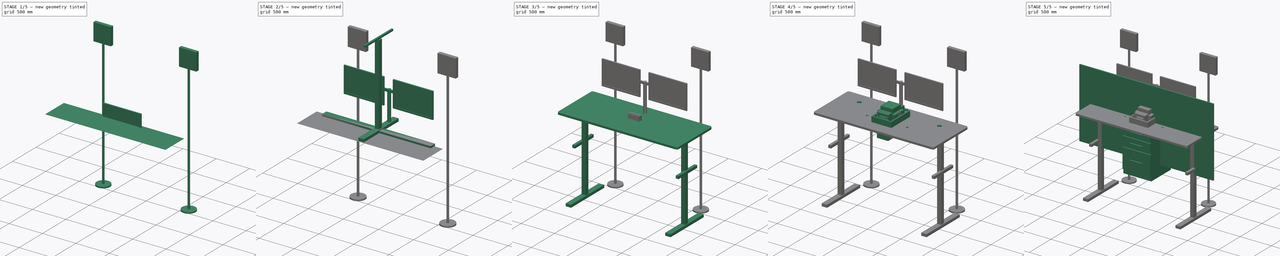
[diagram: build sequence overview — one tinted view per stage of 5, left to right]
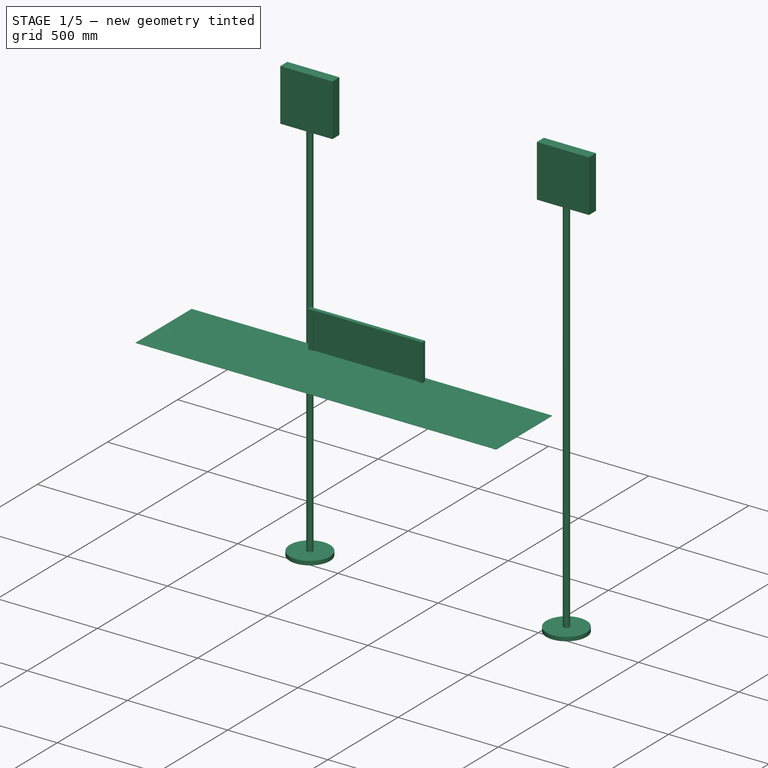
[diagram: stage 1 of 5 — iso view after this stage's code; geometry added in this stage tinted green]
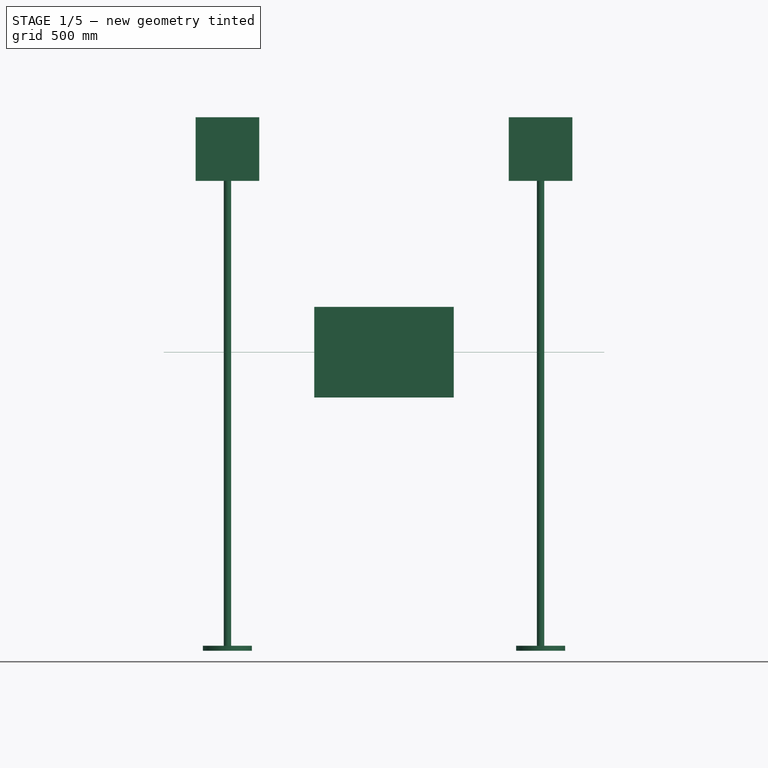
[diagram: stage 1 of 5 — front view after this stage's code; geometry added in this stage tinted green]
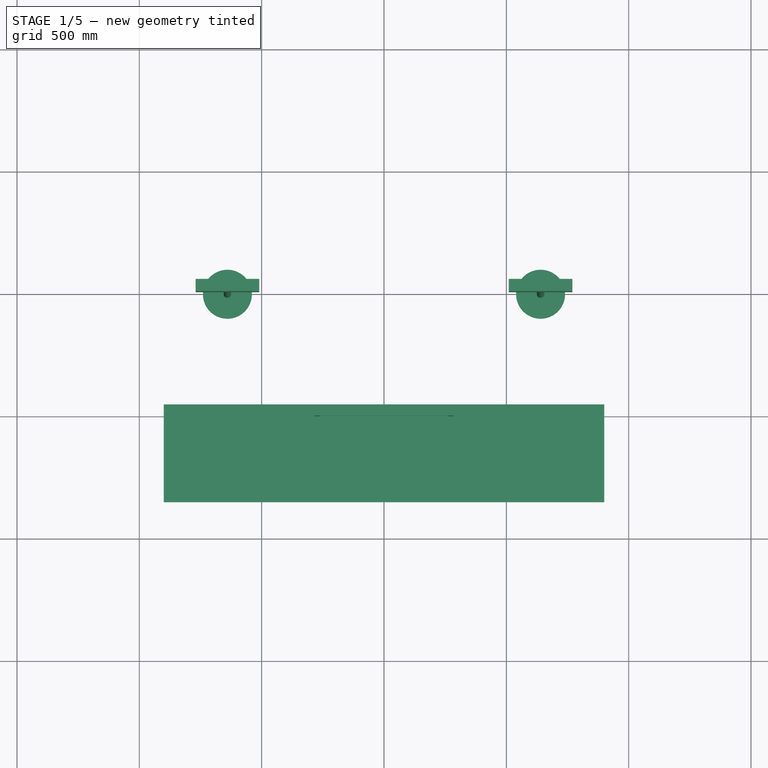
[diagram: stage 1 of 5 — top view after this stage's code; geometry added in this stage tinted green]
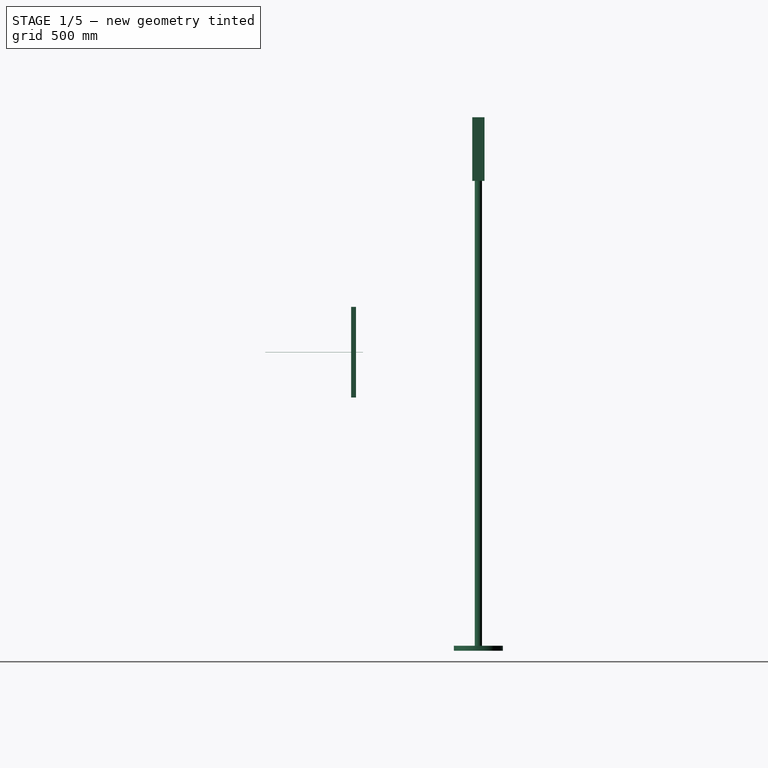
[diagram: stage 1 of 5 — right view after this stage's code; geometry added in this stage tinted green]
FCSTD DOCUMENT  (FreeCAD 0.18R14555 (Git shallow))
Label: MesaInteligente
License: All rights reserved
LicenseURL: http://en.wikipedia.org/wiki/All_rights_reserved
objects: Sketcher::SketchObject×46, PartDesign::Pad×41, PartDesign::Body×22, Part::MultiFuse×6, PartDesign::Pocket×5
note: 166 computed .brp shape members not serialized (recipe doc carries the construction recipe); baked Part::Feature solids carry a one-line shape summary decoded from their .brp

FEATURE [PartDesign::Body] Body006  label="Braso"
  Group = -> [Sketch007,Pad006]
  Origin = -> Origin006
  Placement = pos=(0,220,420) rot=(0,0,1;0rad)
  Tip = -> Pad006
FEATURE [Sketcher::SketchObject] Sketch008
  MapMode = 5
  Placement = pos=(0,0,0) rot=(1,0,0;1.5708rad)
  Support = -> [XZ_Plane007]
  sketch-geometry (4):
    g0: LineSegment StartX=285 StartY=185 StartZ=0 EndX=-285 EndY=185 EndZ=0
    g1: LineSegment StartX=-285 StartY=185 StartZ=0 EndX=-285 EndY=-185 EndZ=0
    g2: LineSegment StartX=-285 StartY=-185 StartZ=0 EndX=285 EndY=-185 EndZ=0
    g3: LineSegment StartX=285 StartY=-185 StartZ=0 EndX=285 EndY=185 EndZ=0
  constraints (10):
    c: Coincident(g0,g1)
    c: Coincident(g1,g2)
    c: Coincident(g2,g3)
    c: Coincident(g3,g0)
    c: Horizontal(g2)
    c: Vertical(g1)
    c: Symmetric(g0,g0,g-2)
    c: Symmetric(g0,g2,g-1)
    c: DistanceX(g0,g0) = 570
    c: DistanceY(g3,g3) = 370
FEATURE [PartDesign::Pad] Pad007
  Length = 20
  Length2 = 100
  Placement = pos=(0,0,0) rot=(1,0,0;1.5708rad)
  Profile = -> Sketch008
  Type = 0
FEATURE [Sketcher::SketchObject] Sketch009
  ExternalGeometry = -> [Pad007]
  MapMode = 5
  Placement = pos=(0,-20,-4.4e-15) rot=(1,0,0;1.5708rad)
  Support = -> [Pad007]
  sketch-geometry (4):
    g0: LineSegment StartX=-260 StartY=160 StartZ=0 EndX=260 EndY=160 EndZ=0
    g1: LineSegment StartX=260 StartY=160 StartZ=0 EndX=260 EndY=-160 EndZ=0
    g2: LineSegment StartX=260 StartY=-160 StartZ=0 EndX=-260 EndY=-160 EndZ=0
    g3: LineSegment StartX=-260 StartY=-160 StartZ=0 EndX=-260 EndY=160 EndZ=0
  constraints (10):
    c: Coincident(g0,g1)
    c: Coincident(g1,g2)
    c: Coincident(g2,g3)
    c: Coincident(g3,g0)
    c: Horizontal(g2)
    c: Vertical(g3)
    c: Symmetric(g0,g0,g-2)
    c: Symmetric(g0,g1,g-1)
    c: DistanceX(g-3,g0) = 25
    c: DistanceY(g0,g-3) = 25
FEATURE [PartDesign::Pocket] Pocket001
  BaseFeature = -> Pad007
  Length = 5
  Length2 = 100
  Placement = pos=(0,0,0) rot=(1,0,0;1.5708rad)
  Profile = -> Sketch009
  Type = 0
FEATURE [PartDesign::Body] Body010  label="PC"
  Group = -> [Sketch017,Pad015,Sketch018,Pocket002,Sketch023,Pad020]
  Origin = -> Origin010
  Placement = pos=(570,-150,-230) rot=(0,0,1;0rad)
  Tip = -> Pad020
FEATURE [Sketcher::SketchObject] Sketch024
  MapMode = 5
  Support = -> [XY_Plane013]
  sketch-geometry (1):
    g0: Circle CenterX=0 CenterY=0 CenterZ=0 NormalX=0 NormalY=0 NormalZ=1 AngleXU=0 Radius=100
  constraints (2):
    c: Coincident(g-1,g0)
    c: Radius(g0) = 100
FEATURE [PartDesign::Pad] Pad021
  Length = 20
  Length2 = 100
  Profile = -> Sketch024
  Type = 0
FEATURE [Sketcher::SketchObject] Sketch025
  MapMode = 5
  Placement = pos=(0,0,20) rot=(0,0,1;0rad)
  Support = -> [Pad021]
  sketch-geometry (1):
    g0: Circle CenterX=0 CenterY=0 CenterZ=0 NormalX=0 NormalY=0 NormalZ=1 AngleXU=0 Radius=15
  constraints (2):
    c: Coincident(g0,g-1)
    c: Radius(g0) = 15
FEATURE [PartDesign::Pad] Pad022
  BaseFeature = -> Pad021
  Length = 1900
  Length2 = 100
  Profile = -> Sketch025
  Type = 0
FEATURE [Sketcher::SketchObject] Sketch026
  MapMode = 5
  Placement = pos=(0,0,1920) rot=(0,0,1;0rad)
  Support = -> [Pad022]
  sketch-geometry (4):
    g0: LineSegment StartX=-130 StartY=25 StartZ=0 EndX=130 EndY=25 EndZ=0
    g1: LineSegment StartX=130 StartY=25 StartZ=0 EndX=130 EndY=-25 EndZ=0
    g2: LineSegment StartX=130 StartY=-25 StartZ=0 EndX=-130 EndY=-25 EndZ=0
    g3: LineSegment StartX=-130 StartY=-25 StartZ=0 EndX=-130 EndY=25 EndZ=0
  constraints (10):
    c: Coincident(g0,g1)
    c: Coincident(g1,g2)
    c: Coincident(g2,g3)
    c: Coincident(g3,g0)
    c: Horizontal(g2)
    c: Vertical(g1)
    c: Symmetric(g0,g0,g-2)
    c: Symmetric(g0,g2,g-1)
    c: DistanceY(g3,g3) = 50
    c: DistanceX(g0,g0) = 260
FEATURE [PartDesign::Pad] Pad023
  BaseFeature = -> Pad022
  Length = 260
  Length2 = 100
  Profile = -> Sketch026
  Type = 0
FEATURE [PartDesign::Body] Body013  label="Lampara"
  Group = -> [Sketch024,Pad021,Sketch025,Pad022,Sketch026,Pad023]
  Origin = -> Origin013
  Placement = pos=(-640,500,-1220) rot=(0,0,1;0rad)
  Tip = -> Pad023
FEATURE [Sketcher::SketchObject] Sketch028
  MapMode = 5
  Support = -> [XY_Plane014]
  sketch-geometry (1):
    g0: Circle CenterX=0 CenterY=0 CenterZ=0 NormalX=0 NormalY=0 NormalZ=1 AngleXU=0 Radius=100
  constraints (2):
    c: Coincident(g-1,g0)
    c: Radius(g0) = 100
FEATURE [PartDesign::Pad] Pad024
  Length = 20
  Length2 = 100
  Profile = -> Sketch028
  Type = 0
FEATURE [Sketcher::SketchObject] Sketch027
  MapMode = 5
  Placement = pos=(0,0,20) rot=(0,0,1;0rad)
  Support = -> [Pad024]
  sketch-geometry (1):
    g0: Circle CenterX=0 CenterY=0 CenterZ=0 NormalX=0 NormalY=0 NormalZ=1 AngleXU=0 Radius=15
  constraints (2):
    c: Coincident(g0,g-1)
    c: Radius(g0) = 15
FEATURE [PartDesign::Pad] Pad025
  BaseFeature = -> Pad024
  Length = 1900
  Length2 = 100
  Profile = -> Sketch027
  Type = 0
FEATURE [Sketcher::SketchObject] Sketch029
  MapMode = 5
  Placement = pos=(0,0,1920) rot=(0,0,1;0rad)
  Support = -> [Pad025]
  sketch-geometry (4):
    g0: LineSegment StartX=-130 StartY=25 StartZ=0 EndX=130 EndY=25 EndZ=0
    g1: LineSegment StartX=130 StartY=25 StartZ=0 EndX=130 EndY=-25 EndZ=0
    g2: LineSegment StartX=130 StartY=-25 StartZ=0 EndX=-130 EndY=-25 EndZ=0
    g3: LineSegment StartX=-130 StartY=-25 StartZ=0 EndX=-130 EndY=25 EndZ=0
  constraints (10):
    c: Coincident(g0,g1)
    c: Coincident(g1,g2)
    c: Coincident(g2,g3)
    c: Coincident(g3,g0)
    c: Horizontal(g2)
    c: Vertical(g1)
    c: Symmetric(g0,g0,g-2)
    c: Symmetric(g0,g2,g-1)
    c: DistanceY(g3,g3) = 50
    c: DistanceX(g0,g0) = 260
FEATURE [PartDesign::Pad] Pad026
  BaseFeature = -> Pad025
  Length = 260
  Length2 = 100
  Profile = -> Sketch029
  Type = 0
FEATURE [Part::MultiFuse] Fusion005  label="Lamparas"
  Shapes = -> [Body013,Body014]
FEATURE [Sketcher::SketchObject] Sketch045
  MapMode = 5
  Support = -> [XY_Plane021]
  sketch-geometry (4):
    g0: LineSegment StartX=-900 StartY=28.5593 StartZ=0 EndX=900 EndY=28.5593 EndZ=0
    g1: LineSegment StartX=900 StartY=28.5593 StartZ=0 EndX=900 EndY=-371.441 EndZ=0
    g2: LineSegment StartX=900 StartY=-371.441 StartZ=0 EndX=-900 EndY=-371.441 EndZ=0
    g3: LineSegment StartX=-900 StartY=-371.441 StartZ=0 EndX=-900 EndY=28.5593 EndZ=0
  constraints (10):
    c: Coincident(g0,g1)
    c: Coincident(g1,g2)
    c: Coincident(g2,g3)
    c: Coincident(g3,g0)
    c: Horizontal(g2)
    c: Vertical(g1)
    c: Vertical(g3)
    c: Symmetric(g0,g0,g-2)
    c: DistanceX(g0,g0) = 1800
    c: DistanceY(g3,g3) = 400
FEATURE [PartDesign::Pad] Pad040
  Length = 1
  Length2 = 100
  Profile = -> Sketch045
  Type = 0
FEATURE [PartDesign::Body] Body021  label="Pizarra"
  Group = -> [Sketch045,Pad040]
  Origin = -> Origin021
  Placement = pos=(0,0,25) rot=(0,0,1;0rad)
  Tip = -> Pad040
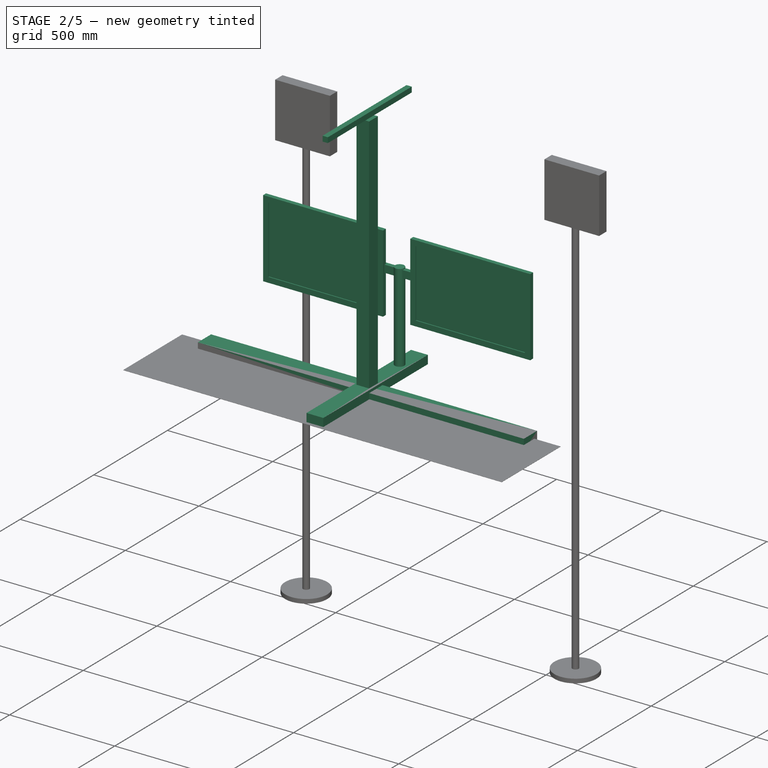
[diagram: stage 2 of 5 — iso view after this stage's code; geometry added in this stage tinted green]
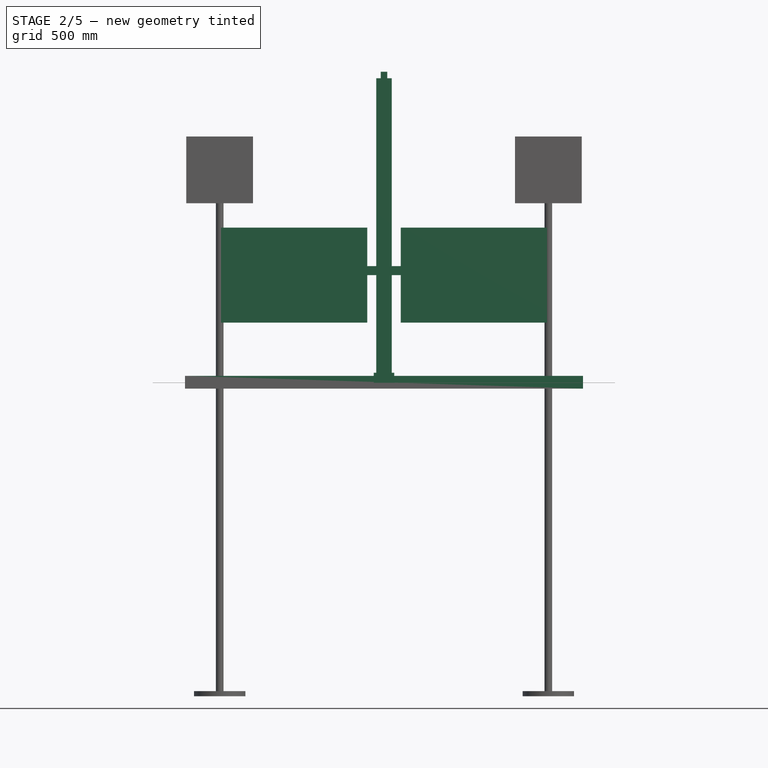
[diagram: stage 2 of 5 — front view after this stage's code; geometry added in this stage tinted green]
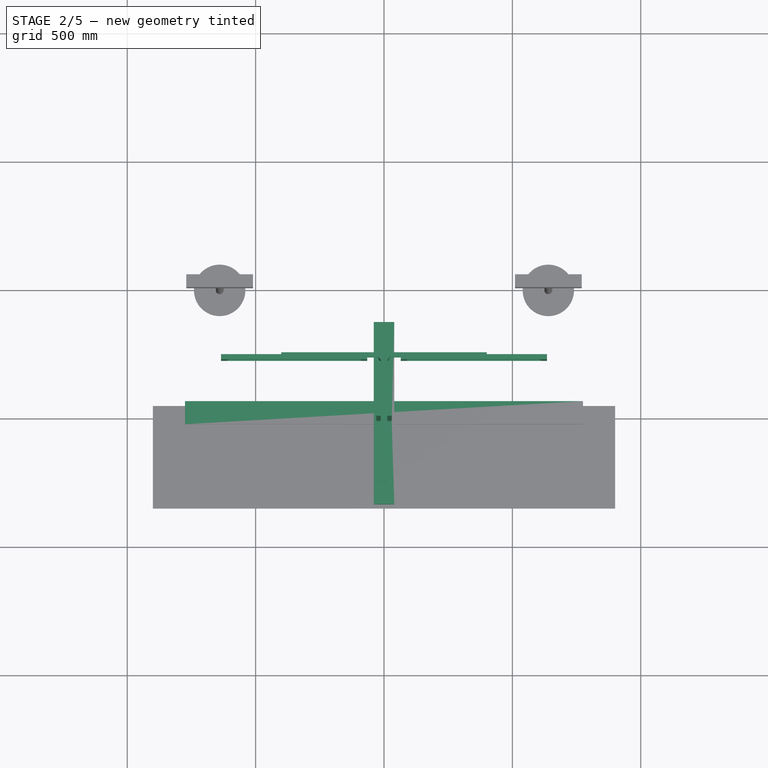
[diagram: stage 2 of 5 — top view after this stage's code; geometry added in this stage tinted green]
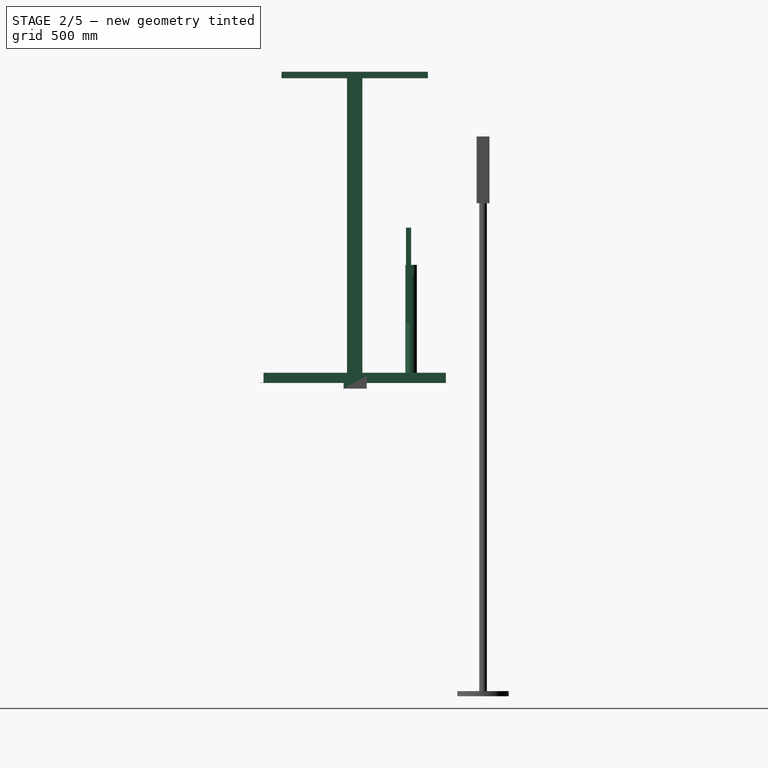
[diagram: stage 2 of 5 — right view after this stage's code; geometry added in this stage tinted green]
FEATURE [PartDesign::Body] Body003  label="MousePad"
  Group = -> [Sketch003,Pad003]
  Origin = -> Origin003
  Placement = pos=(0,-220,20) rot=(0,0,1;0rad)
  Tip = -> Pad003
FEATURE [Sketcher::SketchObject] Sketch004
  MapMode = 5
  Placement = pos=(0,0,0) rot=(1,0,0;1.5708rad)
  Support = -> [XZ_Plane004]
  sketch-geometry (4):
    g0: LineSegment StartX=285 StartY=185 StartZ=0 EndX=-285 EndY=185 EndZ=0
    g1: LineSegment StartX=-285 StartY=185 StartZ=0 EndX=-285 EndY=-185 EndZ=0
    g2: LineSegment StartX=-285 StartY=-185 StartZ=0 EndX=285 EndY=-185 EndZ=0
    g3: LineSegment StartX=285 StartY=-185 StartZ=0 EndX=285 EndY=185 EndZ=0
  constraints (10):
    c: Coincident(g0,g1)
    c: Coincident(g1,g2)
    c: Coincident(g2,g3)
    c: Coincident(g3,g0)
    c: Horizontal(g2)
    c: Vertical(g1)
    c: Symmetric(g0,g0,g-2)
    c: Symmetric(g0,g2,g-1)
    c: DistanceX(g0,g0) = 570
    c: DistanceY(g3,g3) = 370
FEATURE [PartDesign::Pad] Pad004
  Length = 20
  Length2 = 100
  Placement = pos=(0,0,0) rot=(1,0,0;1.5708rad)
  Profile = -> Sketch004
  Type = 0
FEATURE [Sketcher::SketchObject] Sketch005
  ExternalGeometry = -> [Pad004]
  MapMode = 5
  Placement = pos=(0,-20,-4.4e-15) rot=(1,0,0;1.5708rad)
  Support = -> [Pad004]
  sketch-geometry (4):
    g0: LineSegment StartX=-260 StartY=160 StartZ=0 EndX=260 EndY=160 EndZ=0
    g1: LineSegment StartX=260 StartY=160 StartZ=0 EndX=260 EndY=-160 EndZ=0
    g2: LineSegment StartX=260 StartY=-160 StartZ=0 EndX=-260 EndY=-160 EndZ=0
    g3: LineSegment StartX=-260 StartY=-160 StartZ=0 EndX=-260 EndY=160 EndZ=0
  constraints (10):
    c: Coincident(g0,g1)
    c: Coincident(g1,g2)
    c: Coincident(g2,g3)
    c: Coincident(g3,g0)
    c: Horizontal(g2)
    c: Vertical(g3)
    c: Symmetric(g0,g0,g-2)
    c: Symmetric(g0,g1,g-1)
    c: DistanceX(g-3,g0) = 25
    c: DistanceY(g0,g-3) = 25
FEATURE [PartDesign::Pocket] Pocket
  BaseFeature = -> Pad004
  Length = 5
  Length2 = 100
  Placement = pos=(0,0,0) rot=(1,0,0;1.5708rad)
  Profile = -> Sketch005
  Type = 0
FEATURE [PartDesign::Body] Body004  label="Monitor1"
  Group = -> [Sketch004,Pad004,Sketch005,Pocket]
  Origin = -> Origin004
  Placement = pos=(-350,220,420) rot=(0,0,1;0rad)
  Tip = -> Pocket
FEATURE [Sketcher::SketchObject] Sketch006
  MapMode = 5
  Support = -> [XY_Plane005]
  sketch-geometry (1):
    g0: Circle CenterX=0 CenterY=0 CenterZ=0 NormalX=0 NormalY=0 NormalZ=1 AngleXU=0 Radius=22.5
  constraints (2):
    c: Radius(g0) = 22.5
    c: Coincident(g0,g-1)
FEATURE [PartDesign::Pad] Pad005
  Length = 440
  Length2 = 100
  Profile = -> Sketch006
  Type = 0
FEATURE [PartDesign::Body] Body005  label="Barra"
  Group = -> [Sketch006,Pad005]
  Origin = -> Origin005
  Placement = pos=(0,220,20) rot=(0,0,1;0rad)
  Tip = -> Pad005
FEATURE [Sketcher::SketchObject] Sketch007
  MapMode = 5
  Support = -> [XY_Plane006]
  sketch-geometry (4):
    g0: LineSegment StartX=-400 StartY=10 StartZ=0 EndX=400 EndY=10 EndZ=0
    g1: LineSegment StartX=400 StartY=10 StartZ=0 EndX=400 EndY=-10 EndZ=0
    g2: LineSegment StartX=400 StartY=-10 StartZ=0 EndX=-400 EndY=-10 EndZ=0
    g3: LineSegment StartX=-400 StartY=-10 StartZ=0 EndX=-400 EndY=10 EndZ=0
  constraints (10):
    c: Coincident(g0,g1)
    c: Coincident(g1,g2)
    c: Coincident(g2,g3)
    c: Coincident(g3,g0)
    c: Horizontal(g2)
    c: Vertical(g1)
    c: DistanceY(g3,g3) = 20
    c: Symmetric(g0,g2,g-1)
    c: Symmetric(g0,g0,g-2)
    c: DistanceX(g0,g0) = 800
FEATURE [PartDesign::Pad] Pad006
  Length = 35
  Length2 = 100
  Profile = -> Sketch007
  Type = 0
FEATURE [PartDesign::Body] Body015  label="Patas"
  Group = -> [Sketch030,Pad027,Sketch031,Pad028,Sketch032,Pad029,Sketch033,Pad030]
  Origin = -> Origin015
  Placement = pos=(-745,0,-1220) rot=(0,0,1;0rad)
  Tip = -> Pad030
FEATURE [Sketcher::SketchObject] Sketch034
  MapMode = 5
  Support = -> [XY_Plane016]
  sketch-geometry (4):
    g0: LineSegment StartX=-40 StartY=355 StartZ=0 EndX=40 EndY=355 EndZ=0
    g1: LineSegment StartX=40 StartY=355 StartZ=0 EndX=40 EndY=-355 EndZ=0
    g2: LineSegment StartX=40 StartY=-355 StartZ=0 EndX=-40 EndY=-355 EndZ=0
    g3: LineSegment StartX=-40 StartY=-355 StartZ=0 EndX=-40 EndY=355 EndZ=0
  constraints (10):
    c: Coincident(g0,g1)
    c: Coincident(g1,g2)
    c: Coincident(g2,g3)
    c: Coincident(g3,g0)
    c: Horizontal(g2)
    c: Vertical(g1)
    c: Symmetric(g0,g0,g-2)
    c: Symmetric(g0,g2,g-1)
    c: DistanceX(g0,g0) = 80
    c: DistanceY(g3,g3) = 710
FEATURE [PartDesign::Pad] Pad033
  Length = 40
  Length2 = 100
  Profile = -> Sketch034
  Type = 0
FEATURE [Sketcher::SketchObject] Sketch036
  MapMode = 5
  Placement = pos=(0,0,40) rot=(0,0,1;0rad)
  Support = -> [Pad033]
  sketch-geometry (4):
    g0: LineSegment StartX=-30 StartY=30 StartZ=0 EndX=30 EndY=30 EndZ=0
    g1: LineSegment StartX=30 StartY=30 StartZ=0 EndX=30 EndY=-30 EndZ=0
    g2: LineSegment StartX=30 StartY=-30 StartZ=0 EndX=-30 EndY=-30 EndZ=0
    g3: LineSegment StartX=-30 StartY=-30 StartZ=0 EndX=-30 EndY=30 EndZ=0
  constraints (10):
    c: Coincident(g0,g1)
    c: Coincident(g1,g2)
    c: Coincident(g2,g3)
    c: Coincident(g3,g0)
    c: Horizontal(g2)
    c: Vertical(g1)
    c: Symmetric(g0,g0,g-2)
    c: Symmetric(g0,g2,g-1)
    c: Equal(g0,g3)
    c: DistanceX(g0,g0) = 60
FEATURE [PartDesign::Pad] Pad032
  BaseFeature = -> Pad033
  Length = 1146.9
  Length2 = 100
  Profile = -> Sketch036
  Type = 0
FEATURE [Sketcher::SketchObject] Sketch035
  MapMode = 5
  Placement = pos=(0,0,1186.9) rot=(0,0,1;0rad)
  Support = -> [Pad032]
  sketch-geometry (4):
    g0: LineSegment StartX=-12.5 StartY=285 StartZ=0 EndX=12.5 EndY=285 EndZ=0
    g1: LineSegment StartX=12.5 StartY=285 StartZ=0 EndX=12.5 EndY=-285 EndZ=0
    g2: LineSegment StartX=12.5 StartY=-285 StartZ=0 EndX=-12.5 EndY=-285 EndZ=0
    g3: LineSegment StartX=-12.5 StartY=-285 StartZ=0 EndX=-12.5 EndY=285 EndZ=0
  constraints (10):
    c: Coincident(g0,g1)
    c: Coincident(g1,g2)
    c: Coincident(g2,g3)
    c: Coincident(g3,g0)
    c: Horizontal(g2)
    c: Vertical(g1)
    c: Symmetric(g0,g0,g-2)
    c: Symmetric(g0,g2,g-1)
    c: DistanceY(g1,g1) = 570
    c: DistanceX(g0,g0) = 25
FEATURE [PartDesign::Pad] Pad034
  BaseFeature = -> Pad032
  Length = 25
  Length2 = 100
  Profile = -> Sketch035
  Type = 0
FEATURE [PartDesign::Body] Body019  label="Nintendo"
  Group = -> [Sketch042,Pad038,Sketch043,Pocket004]
  Origin = -> Origin019
  Placement = pos=(-450,120,20) rot=(0,0,1;0rad)
  Tip = -> Pocket004
FEATURE [Sketcher::SketchObject] Sketch044
  MapMode = 5
  Placement = pos=(0,0,0) rot=(0.57735,0.57735,0.57735;2.0944rad)
  Support = -> [YZ_Plane020]
  sketch-geometry (4):
    g0: LineSegment StartX=-42.9617 StartY=27.7679 StartZ=0 EndX=47.0383 EndY=27.7679 EndZ=0
    g1: LineSegment StartX=47.0383 StartY=27.7679 StartZ=0 EndX=47.0383 EndY=-22.2321 EndZ=0
    g2: LineSegment StartX=47.0383 StartY=-22.2321 StartZ=0 EndX=-42.9617 EndY=-22.2321 EndZ=0
    g3: LineSegment StartX=-42.9617 StartY=-22.2321 StartZ=0 EndX=-42.9617 EndY=27.7679 EndZ=0
  constraints (10):
    c: Coincident(g0,g1)
    c: Coincident(g1,g2)
    c: Coincident(g2,g3)
    c: Coincident(g3,g0)
    c: Horizontal(g0)
    c: Horizontal(g2)
    c: Vertical(g1)
    c: Vertical(g3)
    c: DistanceX(g0,g0) = 90
    c: DistanceY(g3,g3) = 50
FEATURE [PartDesign::Pad] Pad039
  Length = 1550
  Length2 = 100
  Midplane = true
  Placement = pos=(0,0,0) rot=(0.57735,0.57735,0.57735;2.0944rad)
  Profile = -> Sketch044
  Type = 0
FEATURE [Part::MultiFuse] Fusion002
  Shapes = -> [Body005,Body006]
FEATURE [Part::MultiFuse] Fusion003
  Shapes = -> [Body004,Body007]
FEATURE [Part::MultiFuse] Fusion004  label="Monitores"
  Shapes = -> [Fusion002,Fusion003]
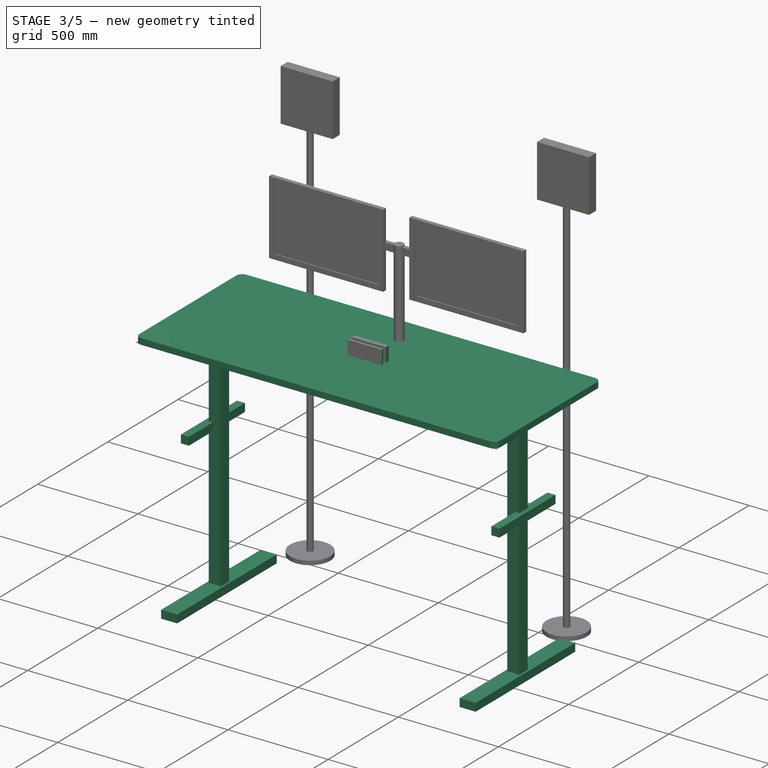
[diagram: stage 3 of 5 — iso view after this stage's code; geometry added in this stage tinted green]
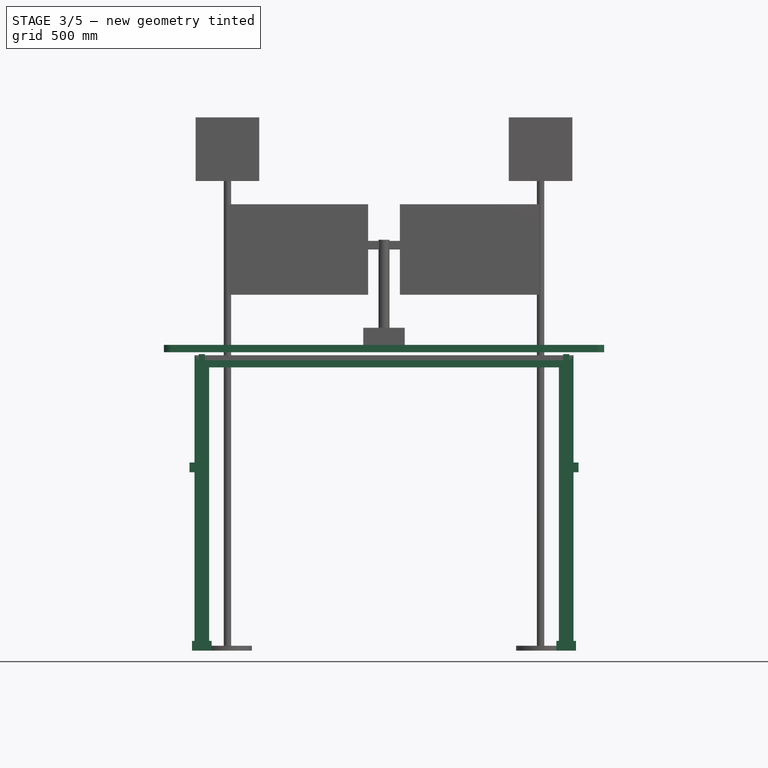
[diagram: stage 3 of 5 — front view after this stage's code; geometry added in this stage tinted green]
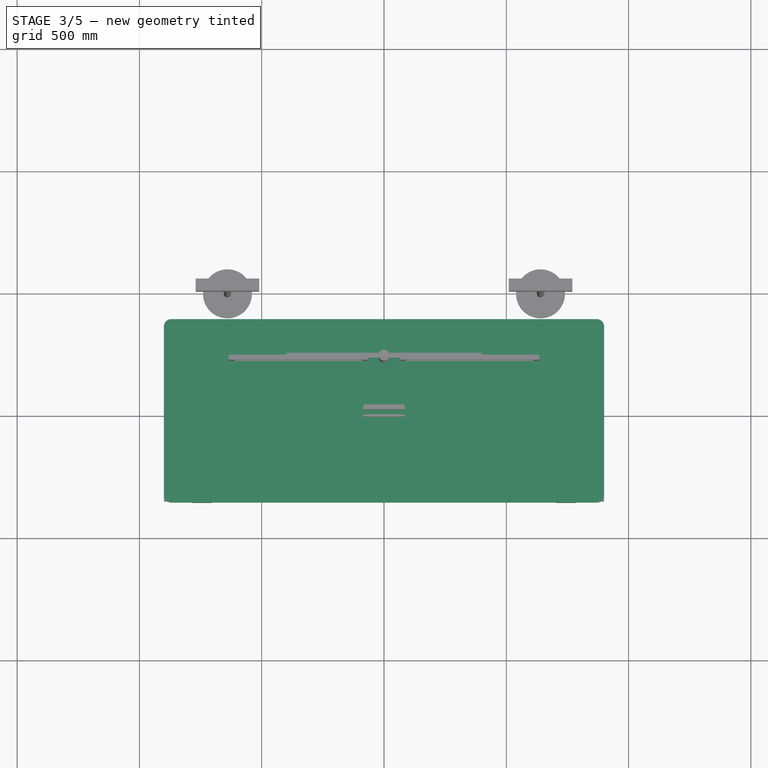
[diagram: stage 3 of 5 — top view after this stage's code; geometry added in this stage tinted green]
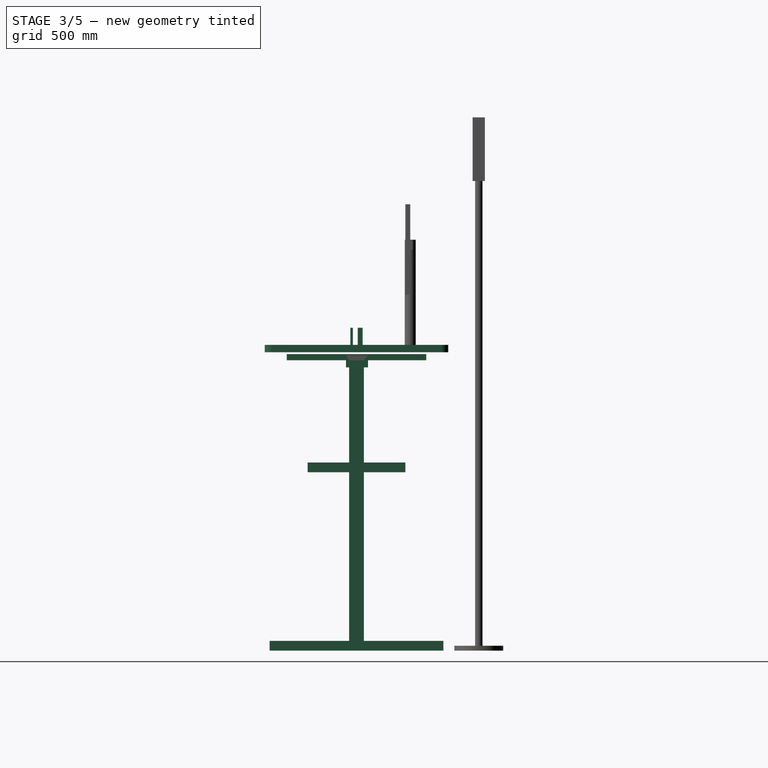
[diagram: stage 3 of 5 — right view after this stage's code; geometry added in this stage tinted green]
FEATURE [PartDesign::Body] Body014  label="Lampara001"
  Group = -> [Sketch028,Pad024,Sketch027,Pad025,Sketch029,Pad026]
  Origin = -> Origin014
  Placement = pos=(640,500,-1220) rot=(0,0,1;0rad)
  Tip = -> Pad026
FEATURE [Sketcher::SketchObject] Sketch030
  MapMode = 5
  Support = -> [XY_Plane015]
  sketch-geometry (4):
    g0: LineSegment StartX=-40 StartY=355 StartZ=0 EndX=40 EndY=355 EndZ=0
    g1: LineSegment StartX=40 StartY=355 StartZ=0 EndX=40 EndY=-355 EndZ=0
    g2: LineSegment StartX=40 StartY=-355 StartZ=0 EndX=-40 EndY=-355 EndZ=0
    g3: LineSegment StartX=-40 StartY=-355 StartZ=0 EndX=-40 EndY=355 EndZ=0
  constraints (10):
    c: Coincident(g0,g1)
    c: Coincident(g1,g2)
    c: Coincident(g2,g3)
    c: Coincident(g3,g0)
    c: Horizontal(g2)
    c: Vertical(g1)
    c: Symmetric(g0,g0,g-2)
    c: Symmetric(g0,g2,g-1)
    c: DistanceX(g0,g0) = 80
    c: DistanceY(g3,g3) = 710
FEATURE [PartDesign::Pad] Pad027
  Length = 40
  Length2 = 100
  Profile = -> Sketch030
  Type = 0
FEATURE [Sketcher::SketchObject] Sketch031
  MapMode = 5
  Placement = pos=(0,0,40) rot=(0,0,1;0rad)
  Support = -> [Pad027]
  sketch-geometry (4):
    g0: LineSegment StartX=-30 StartY=30 StartZ=0 EndX=30 EndY=30 EndZ=0
    g1: LineSegment StartX=30 StartY=30 StartZ=0 EndX=30 EndY=-30 EndZ=0
    g2: LineSegment StartX=30 StartY=-30 StartZ=0 EndX=-30 EndY=-30 EndZ=0
    g3: LineSegment StartX=-30 StartY=-30 StartZ=0 EndX=-30 EndY=30 EndZ=0
  constraints (10):
    c: Coincident(g0,g1)
    c: Coincident(g1,g2)
    c: Coincident(g2,g3)
    c: Coincident(g3,g0)
    c: Horizontal(g2)
    c: Vertical(g1)
    c: Symmetric(g0,g0,g-2)
    c: Symmetric(g0,g2,g-1)
    c: Equal(g0,g3)
    c: DistanceX(g0,g0) = 60
FEATURE [PartDesign::Pad] Pad028
  BaseFeature = -> Pad027
  Length = 1146.9
  Length2 = 100
  Profile = -> Sketch031
  Type = 0
FEATURE [Sketcher::SketchObject] Sketch032
  MapMode = 5
  Placement = pos=(0,0,1186.9) rot=(0,0,1;0rad)
  Support = -> [Pad028]
  sketch-geometry (4):
    g0: LineSegment StartX=-12.5 StartY=285 StartZ=0 EndX=12.5 EndY=285 EndZ=0
    g1: LineSegment StartX=12.5 StartY=285 StartZ=0 EndX=12.5 EndY=-285 EndZ=0
    g2: LineSegment StartX=12.5 StartY=-285 StartZ=0 EndX=-12.5 EndY=-285 EndZ=0
    g3: LineSegment StartX=-12.5 StartY=-285 StartZ=0 EndX=-12.5 EndY=285 EndZ=0
  constraints (10):
    c: Coincident(g0,g1)
    c: Coincident(g1,g2)
    c: Coincident(g2,g3)
    c: Coincident(g3,g0)
    c: Horizontal(g2)
    c: Vertical(g1)
    c: Symmetric(g0,g0,g-2)
    c: Symmetric(g0,g2,g-1)
    c: DistanceY(g1,g1) = 570
    c: DistanceX(g0,g0) = 25
FEATURE [PartDesign::Pad] Pad029
  BaseFeature = -> Pad028
  Length = 25
  Length2 = 100
  Profile = -> Sketch032
  Type = 0
FEATURE [Sketcher::SketchObject] Sketch033
  ExternalGeometry = -> [Pad029]
  MapMode = 5
  Placement = pos=(-30,0,0) rot=(0.57735,-0.57735,-0.57735;2.0944rad)
  Support = -> [Pad029]
  sketch-geometry (4):
    g0: LineSegment StartX=-200 StartY=768.98 StartZ=0 EndX=200 EndY=768.98 EndZ=0
    g1: LineSegment StartX=200 StartY=768.98 StartZ=0 EndX=200 EndY=728.98 EndZ=0
    g2: LineSegment StartX=200 StartY=728.98 StartZ=0 EndX=-200 EndY=728.98 EndZ=0
    g3: LineSegment StartX=-200 StartY=728.98 StartZ=0 EndX=-200 EndY=768.98 EndZ=0
  constraints (11):
    c: Coincident(g0,g1)
    c: Coincident(g1,g2)
    c: Coincident(g2,g3)
    c: Coincident(g3,g0)
    c: Horizontal(g2)
    c: Vertical(g1)
    c: Vertical(g3)
    c: DistanceY(g-4,g2) = 688.98
    c: Symmetric(g0,g0,g-2)
    c: DistanceX(g0,g0) = 400
    c: DistanceY(g3,g3) = 40
FEATURE [PartDesign::Pad] Pad030
  BaseFeature = -> Pad029
  Length = 40
  Length2 = 100
  Midplane = true
  Profile = -> Sketch033
  Reversed = true
  Type = 0
FEATURE [Sketcher::SketchObject] Sketch037
  ExternalGeometry = -> [Pad034]
  MapMode = 5
  Placement = pos=(-30,0,0) rot=(0.57735,-0.57735,-0.57735;2.0944rad)
  Support = -> [Pad034]
  sketch-geometry (4):
    g0: LineSegment StartX=-200 StartY=768.98 StartZ=0 EndX=200 EndY=768.98 EndZ=0
    g1: LineSegment StartX=200 StartY=768.98 StartZ=0 EndX=200 EndY=728.98 EndZ=0
    g2: LineSegment StartX=200 StartY=728.98 StartZ=0 EndX=-200 EndY=728.98 EndZ=0
    g3: LineSegment StartX=-200 StartY=728.98 StartZ=0 EndX=-200 EndY=768.98 EndZ=0
  constraints (11):
    c: Coincident(g0,g1)
    c: Coincident(g1,g2)
    c: Coincident(g2,g3)
    c: Coincident(g3,g0)
    c: Horizontal(g2)
    c: Vertical(g1)
    c: Vertical(g3)
    c: DistanceY(g-4,g2) = 688.98
    c: Symmetric(g0,g0,g-2)
    c: DistanceX(g0,g0) = 400
    c: DistanceY(g3,g3) = 40
FEATURE [PartDesign::Pad] Pad031
  BaseFeature = -> Pad034
  Length = 40
  Length2 = 100
  Midplane = true
  Profile = -> Sketch037
  Reversed = true
  Type = 0
FEATURE [PartDesign::Body] Body017  label="Cajon"
  Group = -> [Sketch038,Pad035,Sketch039,Pad036]
  Origin = -> Origin017
  Placement = pos=(-420,-170,-120) rot=(0,0,1;0rad)
  Tip = -> Pad036
FEATURE [Sketcher::SketchObject] Sketch040
  MapMode = 5
  Support = -> [XY_Plane018]
  sketch-geometry (8):
    g0: LineSegment StartX=-870 StartY=375 StartZ=0 EndX=870 EndY=375 EndZ=0
    g1: LineSegment StartX=900 StartY=345 StartZ=0 EndX=900 EndY=-345 EndZ=0
    g2: LineSegment StartX=870 StartY=-375 StartZ=0 EndX=-870 EndY=-375 EndZ=0
    g3: LineSegment StartX=-900 StartY=-345 StartZ=0 EndX=-900 EndY=345 EndZ=0
    g4: ArcOfCircle CenterX=-870 CenterY=-345 CenterZ=0 NormalX=0 NormalY=0 NormalZ=1 AngleXU=0 Radius=30 StartAngle=3.14159 EndAngle=4.71239
    g5: ArcOfCircle CenterX=870 CenterY=-345 CenterZ=0 NormalX=0 NormalY=0 NormalZ=1 AngleXU=0 Radius=30 StartAngle=4.71239 EndAngle=6.28319
    g6: ArcOfCircle CenterX=870 CenterY=345 CenterZ=0 NormalX=0 NormalY=0 NormalZ=1 AngleXU=0 Radius=30 StartAngle=-9e-16 EndAngle=1.5708
    g7: ArcOfCircle CenterX=-870 CenterY=345 CenterZ=0 NormalX=0 NormalY=0 NormalZ=1 AngleXU=0 Radius=30 StartAngle=1.5708 EndAngle=3.14159
  constraints (17):
    c: Horizontal(g2)
    c: Vertical(g1)
    c: Tangent(g3,g4) = 1.5708
    c: Tangent(g2,g4) = 1.5708
    c: Radius(g4) = 30
    c: Tangent(g2,g5) = 1.5708
    c: Tangent(g1,g5) = 1.5708
    c: Tangent(g0,g6) = 1.5708
    c: Tangent(g1,g6) = 1.5708
    c: Tangent(g0,g7) = 1.5708
    c: Tangent(g3,g7) = 1.5708
    c: Symmetric(g7,g6,g-2)
    c: Symmetric(g4,g5,g-2)
    c: Equal(g7,g6)
    c: Symmetric(g6,g5,g-1)
    c: DistanceY(g2,g0) = 750
    c: DistanceX(g3,g1) = 1800
FEATURE [PartDesign::Pad] Pad037  label="MesaBase"
  Length = 30
  Length2 = 100
  Profile = -> Sketch040
  Type = 0
FEATURE [PartDesign::Body] Body018  label="Mesa nueva"
  Group = -> [Sketch040,Pad037,Sketch041,Pocket003]
  Origin = -> Origin018
  Placement = pos=(0,0,-10) rot=(0,0,1;0rad)
  Tip = -> Pocket003
FEATURE [Sketcher::SketchObject] Sketch042
  MapMode = 5
  Support = -> [XY_Plane019]
  sketch-geometry (4):
    g0: LineSegment StartX=-85 StartY=25 StartZ=0 EndX=85 EndY=25 EndZ=0
    g1: LineSegment StartX=85 StartY=25 StartZ=0 EndX=85 EndY=-25 EndZ=0
    g2: LineSegment StartX=85 StartY=-25 StartZ=0 EndX=-85 EndY=-25 EndZ=0
    g3: LineSegment StartX=-85 StartY=-25 StartZ=0 EndX=-85 EndY=25 EndZ=0
  constraints (10):
    c: Coincident(g0,g1)
    c: Coincident(g1,g2)
    c: Coincident(g2,g3)
    c: Coincident(g3,g0)
    c: Horizontal(g0)
    c: Vertical(g1)
    c: DistanceX(g0,g0) = 170
    c: DistanceY(g3,g3) = 50
    c: Symmetric(g0,g2,g-1)
    c: Symmetric(g2,g1,g-2)
FEATURE [PartDesign::Pad] Pad038
  Length = 100
  Length2 = 100
  Profile = -> Sketch042
  Type = 0
FEATURE [Sketcher::SketchObject] Sketch043
  ExternalGeometry = -> [Pad038]
  MapMode = 5
  Placement = pos=(0,0,100) rot=(0,0,1;0rad)
  Support = -> [Pad038]
  sketch-geometry (4):
    g0: LineSegment StartX=-85 StartY=5 StartZ=0 EndX=85 EndY=5 EndZ=0
    g1: LineSegment StartX=85 StartY=5 StartZ=0 EndX=85 EndY=-15 EndZ=0
    g2: LineSegment StartX=85 StartY=-15 StartZ=0 EndX=-85 EndY=-15 EndZ=0
    g3: LineSegment StartX=-85 StartY=-15 StartZ=0 EndX=-85 EndY=5 EndZ=0
  constraints (12):
    c: Coincident(g0,g1)
    c: Coincident(g1,g2)
    c: Coincident(g2,g3)
    c: Coincident(g3,g0)
    c: Horizontal(g0)
    c: Horizontal(g2)
    c: Vertical(g1)
    c: Vertical(g3)
    c: DistanceY(g1,g1) = 20
    c: PointOnObject(g0,g-4)
    c: PointOnObject(g0,g-3)
    c: DistanceY(g-3,g2) = 10
FEATURE [PartDesign::Pocket] Pocket004
  BaseFeature = -> Pad038
  Length = 80
  Length2 = 100
  Profile = -> Sketch043
  Type = 0
FEATURE [PartDesign::Body] Body020  label="Tubo"
  Group = -> [Sketch044,Pad039]
  Origin = -> Origin020
  Placement = pos=(0,0,-40) rot=(0,0,1;0rad)
  Tip = -> Pad039
FEATURE [Part::MultiFuse] Fusion
  Shapes = -> [Body015,Body020]
FEATURE [Part::MultiFuse] Fusion001  label="Vivo"
  Shapes = -> [Body016,Fusion]
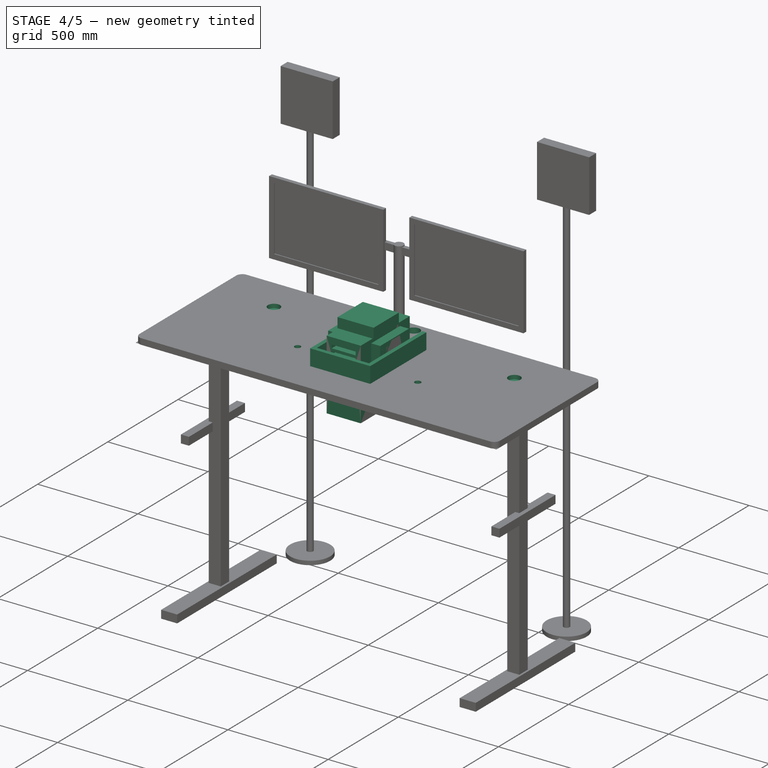
[diagram: stage 4 of 5 — iso view after this stage's code; geometry added in this stage tinted green]
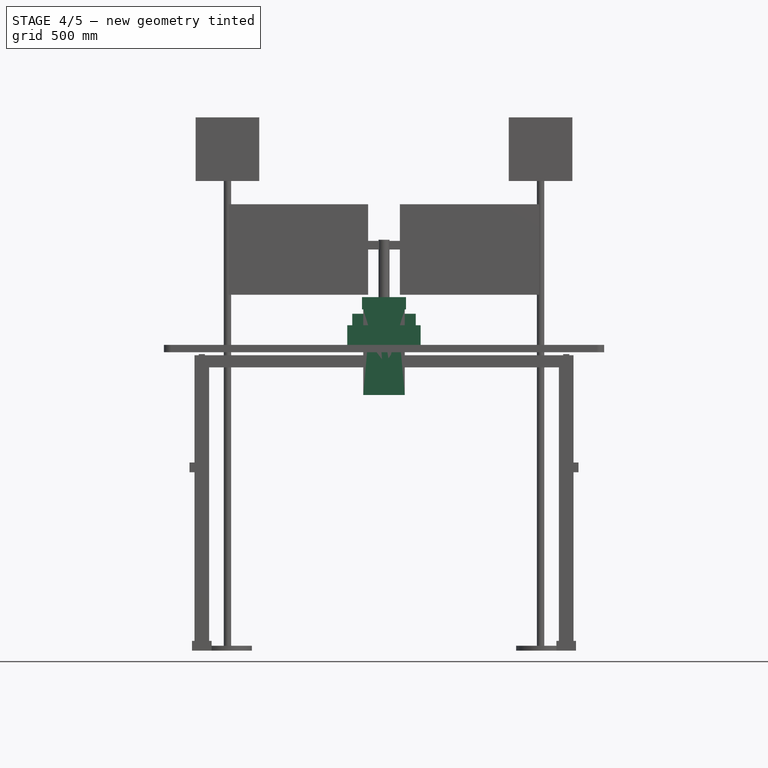
[diagram: stage 4 of 5 — front view after this stage's code; geometry added in this stage tinted green]
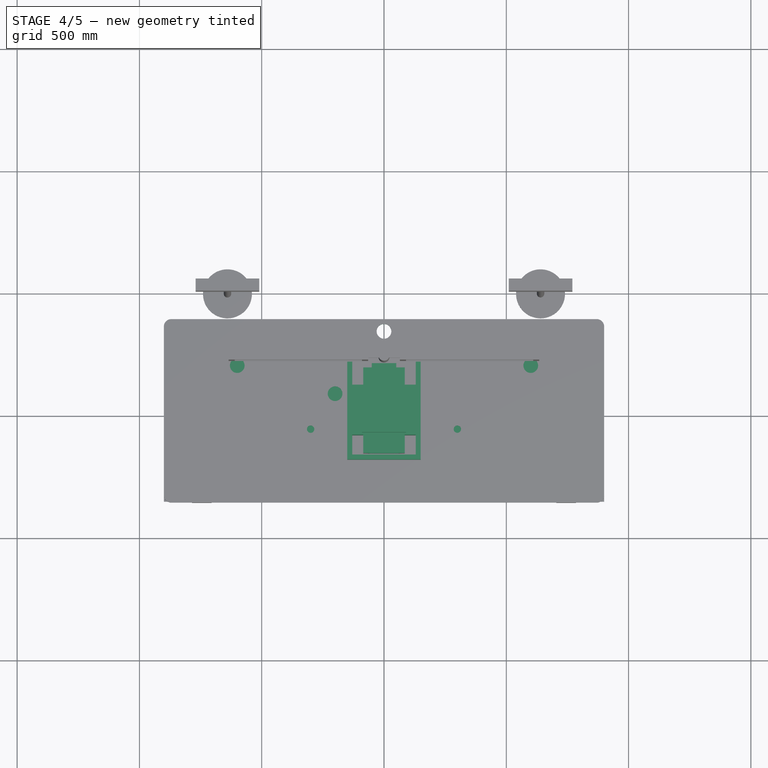
[diagram: stage 4 of 5 — top view after this stage's code; geometry added in this stage tinted green]
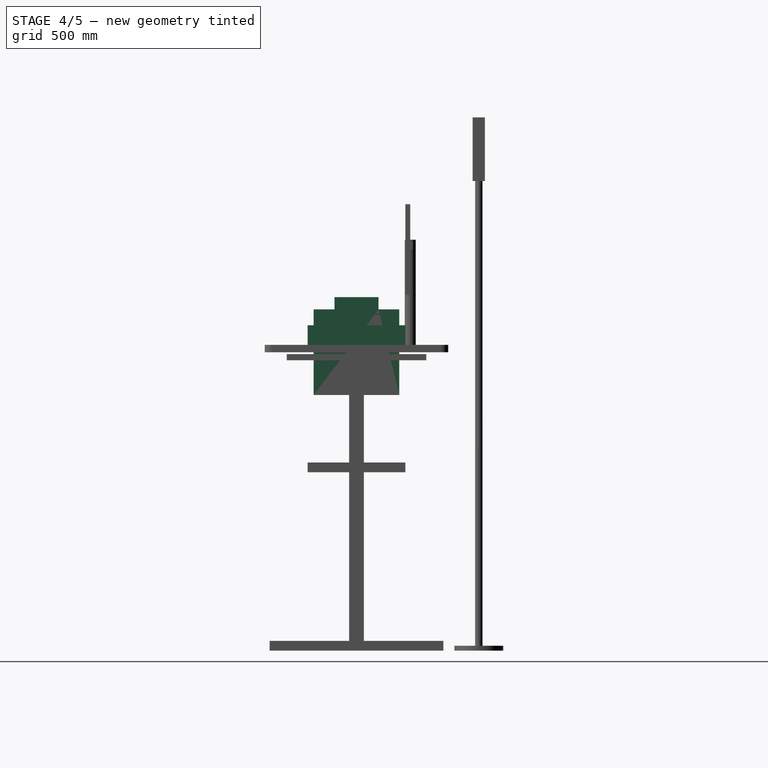
[diagram: stage 4 of 5 — right view after this stage's code; geometry added in this stage tinted green]
FEATURE [PartDesign::Body] Body008  label="Gabetas"
  Group = -> [Sketch010,Pad008,Sketch011,Pad009,Sketch012,Pad010]
  Origin = -> Origin008
  Placement = pos=(-470,-10,-500) rot=(0,0,1;0rad)
  Tip = -> Pad010
FEATURE [Sketcher::SketchObject] Sketch013
  MapMode = 5
  Support = -> [XY_Plane009]
  sketch-geometry (4):
    g0: LineSegment StartX=-120 StartY=130 StartZ=0 EndX=120 EndY=130 EndZ=0
    g1: LineSegment StartX=120 StartY=130 StartZ=0 EndX=120 EndY=-130 EndZ=0
    g2: LineSegment StartX=120 StartY=-130 StartZ=0 EndX=-120 EndY=-130 EndZ=0
    g3: LineSegment StartX=-120 StartY=-130 StartZ=0 EndX=-120 EndY=130 EndZ=0
  constraints (10):
    c: Coincident(g0,g1)
    c: Coincident(g1,g2)
    c: Coincident(g2,g3)
    c: Coincident(g3,g0)
    c: Horizontal(g2)
    c: Vertical(g3)
    c: Symmetric(g0,g0,g-2)
    c: Symmetric(g0,g1,g-1)
    c: DistanceX(g2,g2) = 240
    c: DistanceY(g3,g3) = 260
FEATURE [PartDesign::Pad] Pad011
  Length = 30
  Length2 = 100
  Profile = -> Sketch013
  Type = 0
FEATURE [PartDesign::Body] Body009  label="Interface"
  Group = -> [Sketch013,Pad011,Sketch014,Pad012,Sketch015,Pad013,Sketch016,Pad014]
  Origin = -> Origin009
  Placement = pos=(430,110,20) rot=(0,0,-1;0.785398rad)
  Tip = -> Pad014
FEATURE [Sketcher::SketchObject] Sketch017
  MapMode = 5
  Support = -> [XY_Plane010]
  sketch-geometry (4):
    g0: LineSegment StartX=-85 StartY=175 StartZ=0 EndX=85 EndY=175 EndZ=0
    g1: LineSegment StartX=85 StartY=175 StartZ=0 EndX=85 EndY=-175 EndZ=0
    g2: LineSegment StartX=85 StartY=-175 StartZ=0 EndX=-85 EndY=-175 EndZ=0
    g3: LineSegment StartX=-85 StartY=-175 StartZ=0 EndX=-85 EndY=175 EndZ=0
  constraints (10):
    c: Coincident(g0,g1)
    c: Coincident(g1,g2)
    c: Coincident(g2,g3)
    c: Coincident(g3,g0)
    c: Horizontal(g2)
    c: Vertical(g1)
    c: Symmetric(g0,g0,g-2)
    c: Symmetric(g0,g2,g-1)
    c: DistanceX(g0,g0) = 170
    c: DistanceY(g3,g3) = 350
FEATURE [PartDesign::Pad] Pad015
  Length = 350
  Length2 = 100
  Midplane = true
  Profile = -> Sketch017
  Reversed = true
  Type = 0
FEATURE [Sketcher::SketchObject] Sketch018
  MapMode = 5
  Placement = pos=(0,-175,0) rot=(1,0,0;1.5708rad)
  Support = -> [Pad015]
  sketch-geometry (9):
    g0: LineSegment StartX=-59.8063 StartY=142.468 StartZ=0 EndX=59.8063 EndY=142.468 EndZ=0
    g1: LineSegment StartX=59.8063 StartY=142.468 StartZ=0 EndX=59.8063 EndY=124.859 EndZ=0
    g2: LineSegment StartX=59.8063 StartY=124.859 StartZ=0 EndX=-59.8063 EndY=124.859 EndZ=0
    g3: LineSegment StartX=-59.8063 StartY=124.859 StartZ=0 EndX=-59.8063 EndY=142.468 EndZ=0
    g4: LineSegment StartX=-60.4585 StartY=111.164 StartZ=0 EndX=60.4585 EndY=111.164 EndZ=0
    g5: LineSegment StartX=60.4585 StartY=111.164 StartZ=0 EndX=60.4585 EndY=96.8159 EndZ=0
    g6: LineSegment StartX=60.4585 StartY=96.8159 StartZ=0 EndX=-60.4585 EndY=96.8159 EndZ=0
    g7: LineSegment StartX=-60.4585 StartY=96.8159 StartZ=0 EndX=-60.4585 EndY=111.164 EndZ=0
    g8: Circle CenterX=0 CenterY=0 CenterZ=0 NormalX=0 NormalY=0 NormalZ=1 AngleXU=0 Radius=30.2118
  constraints (17):
    c: Coincident(g0,g1)
    c: Coincident(g1,g2)
    c: Coincident(g2,g3)
    c: Coincident(g3,g0)
    c: Horizontal(g2)
    c: Vertical(g1)
    c: Vertical(g3)
    c: Coincident(g4,g5)
    c: Coincident(g5,g6)
    c: Coincident(g6,g7)
    c: Coincident(g7,g4)
    c: Horizontal(g6)
    c: Vertical(g5)
    c: Vertical(g7)
    c: Coincident(g8,g-1)
    c: Symmetric(g0,g0,g-2)
    c: Symmetric(g4,g4,g-2)
FEATURE [PartDesign::Pocket] Pocket002
  BaseFeature = -> Pad015
  Length = 30
  Length2 = 100
  Profile = -> Sketch018
  Type = 0
FEATURE [Sketcher::SketchObject] Sketch019
  MapMode = 5
  Support = -> [XY_Plane011]
  sketch-geometry (4):
    g0: LineSegment StartX=-741.296 StartY=295.071 StartZ=0 EndX=782.704 EndY=295.071 EndZ=0
    g1: LineSegment StartX=782.704 StartY=295.071 StartZ=0 EndX=782.704 EndY=-314.529 EndZ=0
    g2: LineSegment StartX=782.704 StartY=-314.529 StartZ=0 EndX=-741.296 EndY=-314.529 EndZ=0
    g3: LineSegment StartX=-741.296 StartY=-314.529 StartZ=0 EndX=-741.296 EndY=295.071 EndZ=0
  constraints (10):
    c: Coincident(g0,g1)
    c: Coincident(g1,g2)
    c: Coincident(g2,g3)
    c: Coincident(g3,g0)
    c: Horizontal(g0)
    c: Horizontal(g2)
    c: Vertical(g1)
    c: Vertical(g3)
    c: DistanceX(g0,g0) = 1524
    c: DistanceY(g3,g3) = 609.6
FEATURE [PartDesign::Pad] Pad016
  Length = 10
  Length2 = 100
  Profile = -> Sketch019
  Type = 0
FEATURE [PartDesign::Body] Body011  label="TablaBase"
  Group = -> [Sketch019,Pad016]
  Origin = -> Origin011
  Placement = pos=(0,0,51) rot=(0,0,1;0rad)
  Tip = -> Pad016
FEATURE [Sketcher::SketchObject] Sketch020
  MapMode = 5
  Support = -> [XY_Plane012]
  sketch-geometry (8):
    g0: LineSegment StartX=-130 StartY=124.763 StartZ=0 EndX=130 EndY=124.763 EndZ=0
    g1: LineSegment StartX=130 StartY=124.763 StartZ=0 EndX=130 EndY=-100.237 EndZ=0
    g2: LineSegment StartX=130 StartY=-100.237 StartZ=0 EndX=80 EndY=-100.237 EndZ=0
    g3: LineSegment StartX=-130 StartY=-100.237 StartZ=0 EndX=-130 EndY=124.763 EndZ=0
    g4: LineSegment StartX=-80 StartY=74.7626 StartZ=0 EndX=80 EndY=74.7626 EndZ=0
    g5: LineSegment StartX=80 StartY=74.7626 StartZ=0 EndX=80 EndY=-100.237 EndZ=0
    g6: LineSegment StartX=-80 StartY=-100.237 StartZ=0 EndX=-80 EndY=74.7626 EndZ=0
    g7: LineSegment StartX=-80 StartY=-100.237 StartZ=0 EndX=-130 EndY=-100.237 EndZ=0
  constraints (21):
    c: Coincident(g0,g1)
    c: Coincident(g1,g2)
    c: Coincident(g7,g3)
    c: Coincident(g3,g0)
    c: Horizontal(g2)
    c: Vertical(g1)
    c: Vertical(g3)
    c: Symmetric(g0,g0,g-2)
    c: DistanceX(g0,g0) = 260
    c: DistanceY(g3,g3) = 225
    c: Coincident(g4,g5)
    c: Coincident(g6,g4)
    c: Horizontal(g4)
    c: Vertical(g5)
    c: Vertical(g6)
    c: Tangent(g2,g7)
    c: Coincident(g6,g7)
    c: Coincident(g5,g2)
    c: DistanceX(g7,g7) = 50
    c: Equal(g7,g2)
    c: DistanceY(g4,g0) = 50
FEATURE [PartDesign::Pad] Pad017
  Length = 5
  Length2 = 100
  Profile = -> Sketch020
  Type = 0
FEATURE [Sketcher::SketchObject] Sketch021
  ExternalGeometry = -> [Pad017]
  MapMode = 5
  Placement = pos=(0,0,5) rot=(0,0,1;0rad)
  Support = -> [Pad017]
  sketch-geometry (8):
    g0: LineSegment StartX=130 StartY=-100.237 StartZ=0 EndX=80 EndY=-100.237 EndZ=0
    g1: LineSegment StartX=80 StartY=-100.237 StartZ=0 EndX=80 EndY=-95.2374 EndZ=0
    g2: LineSegment StartX=80 StartY=-95.2374 StartZ=0 EndX=130 EndY=-95.2374 EndZ=0
    g3: LineSegment StartX=130 StartY=-95.2374 StartZ=0 EndX=130 EndY=-100.237 EndZ=0
    g4: LineSegment StartX=-80 StartY=-100.237 StartZ=0 EndX=-130 EndY=-100.237 EndZ=0
    g5: LineSegment StartX=-130 StartY=-100.237 StartZ=0 EndX=-130 EndY=-95.2374 EndZ=0
    g6: LineSegment StartX=-130 StartY=-95.2374 StartZ=0 EndX=-80 EndY=-95.2374 EndZ=0
    g7: LineSegment StartX=-80 StartY=-95.2374 StartZ=0 EndX=-80 EndY=-100.237 EndZ=0
  constraints (20):
    c: Coincident(g0,g1)
    c: Coincident(g1,g2)
    c: Coincident(g2,g3)
    c: Coincident(g3,g0)
    c: Horizontal(g2)
    c: Vertical(g1)
    c: Vertical(g3)
    c: Coincident(g4,g5)
    c: Coincident(g5,g6)
    c: Coincident(g6,g7)
    c: Coincident(g7,g4)
    c: Horizontal(g6)
    c: Vertical(g5)
    c: Vertical(g7)
    c: DistanceY(g3,g3) = 5
    c: Coincident(g0,g-6)
    c: Coincident(g0,g-5)
    c: DistanceY(g7,g7) = 5
    c: Coincident(g4,g-3)
    c: Coincident(g-4,g4)
FEATURE [PartDesign::Pad] Pad018
  BaseFeature = -> Pad017
  Length = 152.4
  Length2 = 100
  Profile = -> Sketch021
  Type = 0
FEATURE [Sketcher::SketchObject] Sketch022
  ExternalGeometry = -> [Pad018]
  MapMode = 5
  Placement = pos=(0,-95.2374,0) rot=(0,0.707107,0.707107;3.14159rad)
  Support = -> [Pad018]
  sketch-geometry (8):
    g0: LineSegment StartX=-130 StartY=157.4 StartZ=0 EndX=-80 EndY=157.4 EndZ=0
    g1: LineSegment StartX=-80 StartY=157.4 StartZ=0 EndX=-80 EndY=152.4 EndZ=0
    g2: LineSegment StartX=-80 StartY=152.4 StartZ=0 EndX=-130 EndY=152.4 EndZ=0
    g3: LineSegment StartX=-130 StartY=152.4 StartZ=0 EndX=-130 EndY=157.4 EndZ=0
    g4: LineSegment StartX=80 StartY=157.4 StartZ=0 EndX=130 EndY=157.4 EndZ=0
    g5: LineSegment StartX=130 StartY=157.4 StartZ=0 EndX=130 EndY=152.4 EndZ=0
    g6: LineSegment StartX=130 StartY=152.4 StartZ=0 EndX=80 EndY=152.4 EndZ=0
    g7: LineSegment StartX=80 StartY=152.4 StartZ=0 EndX=80 EndY=157.4 EndZ=0
  constraints (20):
    c: Coincident(g0,g1)
    c: Coincident(g1,g2)
    c: Coincident(g2,g3)
    c: Coincident(g3,g0)
    c: Horizontal(g2)
    c: Vertical(g1)
    c: Vertical(g3)
    c: Coincident(g4,g5)
    c: Coincident(g5,g6)
    c: Coincident(g6,g7)
    c: Coincident(g7,g4)
    c: Horizontal(g6)
    c: Vertical(g5)
    c: Vertical(g7)
    c: DistanceY(g7,g7) = 5
    c: DistanceY(g1,g1) = 5
    c: Coincident(g0,g-3)
    c: Coincident(g-3,g0)
    c: Coincident(g-4,g4)
    c: Coincident(g-4,g4)
FEATURE [PartDesign::Pad] Pad019
  BaseFeature = -> Pad018
  Length = 200
  Length2 = 100
  Profile = -> Sketch022
  Type = 0
FEATURE [PartDesign::Body] Body012  label="BaseLaptop"
  Group = -> [Sketch020,Pad017,Sketch021,Pad018,Sketch022,Pad019]
  Origin = -> Origin012
  Placement = pos=(0,90,20) rot=(0,0,1;3.14159rad)
  Tip = -> Pad019
FEATURE [Sketcher::SketchObject] Sketch023
  MapMode = 5
  Placement = pos=(0,0,175) rot=(0,0,1;0rad)
  Support = -> [Pocket002]
  sketch-geometry (4):
    g0: LineSegment StartX=-90 StartY=90 StartZ=0 EndX=90 EndY=90 EndZ=0
    g1: LineSegment StartX=90 StartY=90 StartZ=0 EndX=90 EndY=-90 EndZ=0
    g2: LineSegment StartX=90 StartY=-90 StartZ=0 EndX=-90 EndY=-90 EndZ=0
    g3: LineSegment StartX=-90 StartY=-90 StartZ=0 EndX=-90 EndY=90 EndZ=0
  constraints (10):
    c: Coincident(g0,g1)
    c: Coincident(g1,g2)
    c: Coincident(g2,g3)
    c: Coincident(g3,g0)
    c: Horizontal(g2)
    c: Vertical(g1)
    c: Symmetric(g0,g0,g-2)
    c: Symmetric(g0,g2,g-1)
    c: DistanceX(g0,g0) = 180
    c: Equal(g3,g0)
FEATURE [PartDesign::Pad] Pad020
  BaseFeature = -> Pocket002
  Length = 50
  Length2 = 100
  Profile = -> Sketch023
  Type = 0
FEATURE [PartDesign::Body] Body016  label="Patas2"
  Group = -> [Sketch034,Pad033,Sketch036,Pad032,Sketch035,Pad034,Sketch037,Pad031]
  Origin = -> Origin016
  Placement = pos=(745,0,-1220) rot=(0,0,1;3.14159rad)
  Tip = -> Pad031
FEATURE [Sketcher::SketchObject] Sketch038
  MapMode = 5
  Support = -> [XY_Plane017]
  sketch-geometry (4):
    g0: LineSegment StartX=-150 StartY=200 StartZ=0 EndX=150 EndY=200 EndZ=0
    g1: LineSegment StartX=150 StartY=200 StartZ=0 EndX=150 EndY=-200 EndZ=0
    g2: LineSegment StartX=150 StartY=-200 StartZ=0 EndX=-150 EndY=-200 EndZ=0
    g3: LineSegment StartX=-150 StartY=-200 StartZ=0 EndX=-150 EndY=200 EndZ=0
  constraints (10):
    c: Coincident(g0,g1)
    c: Coincident(g1,g2)
    c: Coincident(g2,g3)
    c: Coincident(g3,g0)
    c: Horizontal(g2)
    c: Vertical(g1)
    c: Symmetric(g0,g0,g-2)
    c: Symmetric(g0,g2,g-1)
    c: DistanceY(g1,g1) = 400
    c: DistanceX(g0,g0) = 300
FEATURE [PartDesign::Pad] Pad035
  Length = 20
  Length2 = 100
  Profile = -> Sketch038
  Type = 0
FEATURE [Sketcher::SketchObject] Sketch039
  ExternalGeometry = -> [Pad035]
  MapMode = 5
  Placement = pos=(0,0,20) rot=(0,0,1;0rad)
  Support = -> [Pad035]
  sketch-geometry (8):
    g0: LineSegment StartX=-150 StartY=200 StartZ=0 EndX=-130 EndY=200 EndZ=0
    g1: LineSegment StartX=-130 StartY=200 StartZ=0 EndX=-130 EndY=-180 EndZ=0
    g2: LineSegment StartX=-130 StartY=-180 StartZ=0 EndX=130 EndY=-180 EndZ=0
    g3: LineSegment StartX=130 StartY=-180 StartZ=0 EndX=130 EndY=200 EndZ=0
    g4: LineSegment StartX=130 StartY=200 StartZ=0 EndX=150 EndY=200 EndZ=0
    g5: LineSegment StartX=150 StartY=200 StartZ=0 EndX=150 EndY=-200 EndZ=0
    g6: LineSegment StartX=150 StartY=-200 StartZ=0 EndX=-150 EndY=-200 EndZ=0
    g7: LineSegment StartX=-150 StartY=-200 StartZ=0 EndX=-150 EndY=200 EndZ=0
  constraints (20):
    c: Coincident(g0,g1)
    c: Coincident(g1,g2)
    c: Coincident(g2,g3)
    c: Coincident(g3,g4)
    c: Coincident(g4,g5)
    c: Coincident(g5,g6)
    c: Coincident(g6,g7)
    c: Coincident(g7,g0)
    c: Coincident(g0,g-3)
    c: Coincident(g6,g-5)
    c: Coincident(g5,g-5)
    c: Coincident(g4,g-4)
    c: Horizontal(g0)
    c: Horizontal(g4)
    c: DistanceX(g0,g0) = 20
    c: DistanceX(g4,g4) = 20
    c: Vertical(g1)
    c: Vertical(g3)
    c: Horizontal(g2)
    c: DistanceY(g6,g1) = 20
FEATURE [PartDesign::Pad] Pad036
  BaseFeature = -> Pad035
  Length = 90
  Length2 = 100
  Profile = -> Sketch039
  Type = 0
FEATURE [Sketcher::SketchObject] Sketch041
  ExternalGeometry = -> [Pad037]
  MapMode = 5
  Placement = pos=(0,0,30) rot=(0,0,1;0rad)
  Support = -> [Pad037]
  sketch-geometry (18):
    g0: LineSegment [constr] StartX=-400 StartY=-75 StartZ=0 EndX=400 EndY=-75 EndZ=0
    g1: LineSegment [constr] StartX=400 StartY=-75 StartZ=0 EndX=400 EndY=-375 EndZ=0
    g2: LineSegment [constr] StartX=400 StartY=-375 StartZ=0 EndX=-400 EndY=-375 EndZ=0
    g3: LineSegment [constr] StartX=-400 StartY=-375 StartZ=0 EndX=-400 EndY=-75 EndZ=0
    g4: Circle CenterX=0 CenterY=-75 CenterZ=0 NormalX=0 NormalY=0 NormalZ=1 AngleXU=0 Radius=15
    g5: Circle CenterX=-300 CenterY=-75 CenterZ=0 NormalX=0 NormalY=0 NormalZ=1 AngleXU=0 Radius=15
    g6: Circle CenterX=300 CenterY=-75 CenterZ=0 NormalX=0 NormalY=0 NormalZ=1 AngleXU=0 Radius=15
    g7: LineSegment [constr] StartX=-396.179 StartY=-75 StartZ=0 EndX=399.395 EndY=-75 EndZ=0
    g8: LineSegment StartX=-50 StartY=195 StartZ=0 EndX=50 EndY=195 EndZ=0
    g9: LineSegment StartX=50 StartY=195 StartZ=0 EndX=50 EndY=175 EndZ=0
    g10: LineSegment StartX=50 StartY=175 StartZ=0 EndX=-50 EndY=175 EndZ=0
    g11: LineSegment StartX=-50 StartY=175 StartZ=0 EndX=-50 EndY=195 EndZ=0
    g12: Circle CenterX=0 CenterY=325 CenterZ=0 NormalX=0 NormalY=0 NormalZ=1 AngleXU=0 Radius=30
    g13: Circle CenterX=-600 CenterY=185 CenterZ=0 NormalX=0 NormalY=0 NormalZ=1 AngleXU=0 Radius=30
    g14: Circle CenterX=600 CenterY=185 CenterZ=0 NormalX=0 NormalY=0 NormalZ=1 AngleXU=0 Radius=30
    g15: LineSegment [constr] StartX=-901.433 StartY=185 StartZ=0 EndX=895.233 EndY=185 EndZ=0
    g16: Circle [constr] CenterX=0 CenterY=225.421 CenterZ=0 NormalX=0 NormalY=0 NormalZ=1 AngleXU=0 Radius=50
    g17: Circle CenterX=-200 CenterY=70.0436 CenterZ=0 NormalX=0 NormalY=0 NormalZ=1 AngleXU=0 Radius=30
  constraints (45):
    c: Coincident(g0,g1)
    c: Coincident(g1,g2)
    c: Coincident(g2,g3)
    c: Coincident(g3,g0)
    c: Horizontal(g0)
    c: Vertical(g1)
    c: Vertical(g3)
    c: Symmetric(g1,g2,g-2)
    c: DistanceX(g2,g2) = 800
    c: DistanceY(g3,g3) = 300
    c: PointOnObject(g2,g-3)
    c: Horizontal(g7)
    c: PointOnObject(g5,g7)
    c: PointOnObject(g4,g7)
    c: Radius(g5) = 15
    c: Equal(g4,g6)
    c: Equal(g6,g5)
    c: PointOnObject(g4,g-2)
    c: Symmetric(g5,g6,g-2)
    c: DistanceX(g5,g-1) = 300
    c: DistanceY(g1,g7) = 300
    c: Coincident(g8,g9)
    c: Coincident(g9,g10)
    c: Coincident(g10,g11)
    c: Coincident(g11,g8)
    c: Horizontal(g10)
    c: Vertical(g9)
    c: Vertical(g11)
    c: Symmetric(g8,g8,g-2)
    c: DistanceY(g11,g11) = 20
    c: DistanceX(g8,g8) = 100
    c: PointOnObject(g13,g15)
    c: Symmetric(g8,g9,g15)
    c: DistanceY(g1,g9) = 550
    c: Symmetric(g13,g14,g-2)
    c: DistanceX(g-1,g14) = 600
    c: DistanceY(g12,g-6) = 50
    c: PointOnObject(g12,g-2)
    c: Radius(g12) = 30
    c: Radius(g16) = 50
    c: PointOnObject(g16,g-2)
    c: Equal(g14,g12)
    c: Equal(g12,g13)
    c: Equal(g17,g12)
    c: DistanceX(g17,g-1) = 200
FEATURE [PartDesign::Pocket] Pocket003
  BaseFeature = -> Pad037
  Length = 5
  Length2 = 100
  Profile = -> Sketch041
  Type = 1
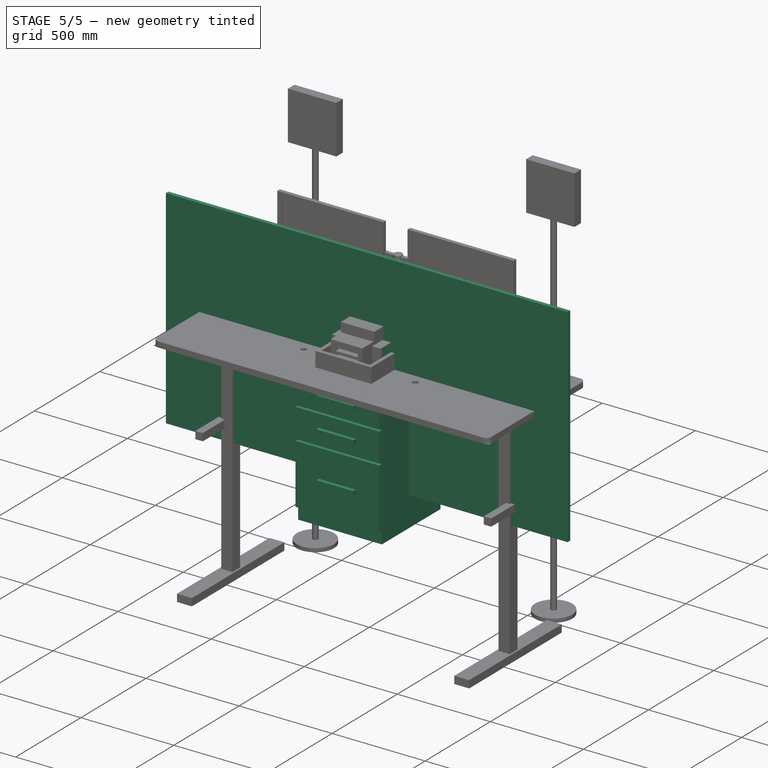
[diagram: stage 5 of 5 — iso view after this stage's code; geometry added in this stage tinted green]
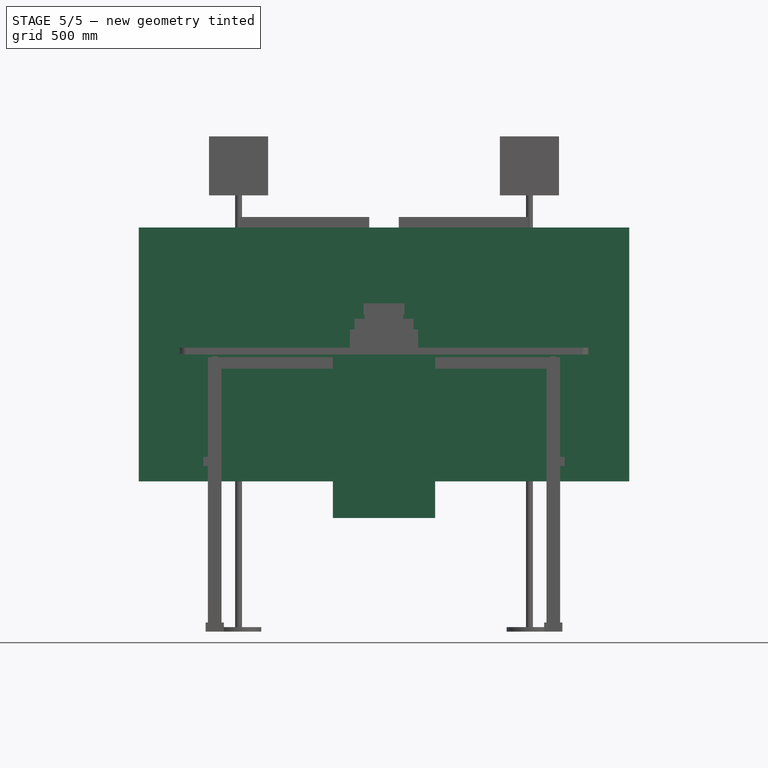
[diagram: stage 5 of 5 — front view after this stage's code; geometry added in this stage tinted green]
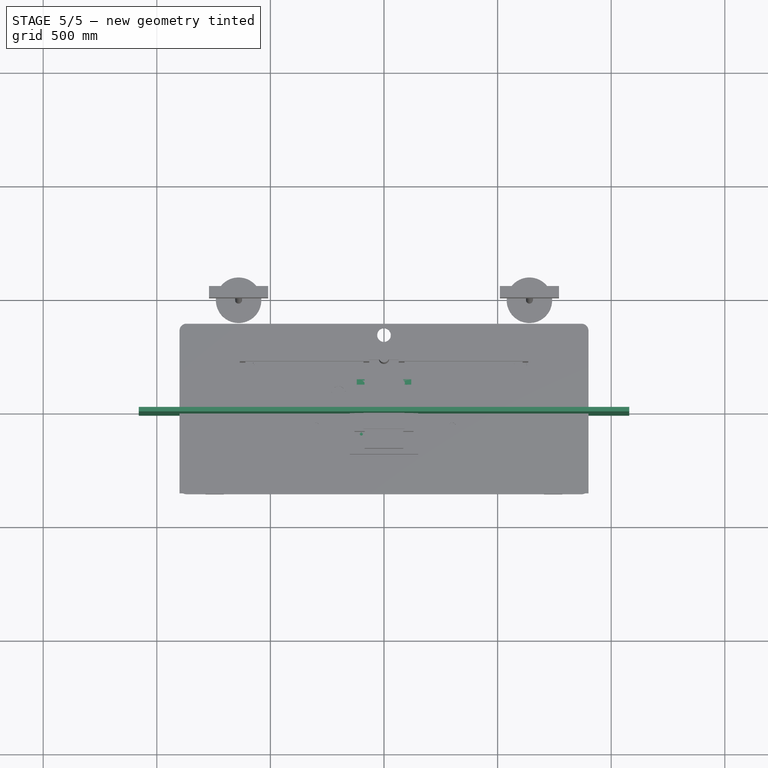
[diagram: stage 5 of 5 — top view after this stage's code; geometry added in this stage tinted green]
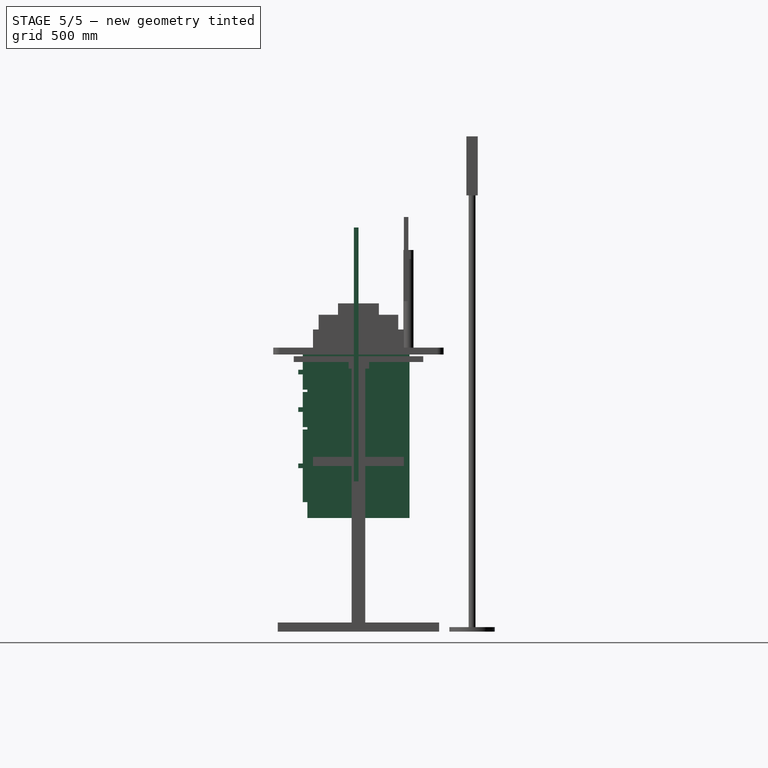
[diagram: stage 5 of 5 — right view after this stage's code; geometry added in this stage tinted green]
FEATURE [Sketcher::SketchObject] Sketch
  MapMode = 5
  Placement = pos=(0,0,0) rot=(1,0,0;1.5708rad)
  Support = -> [XZ_Plane]
  sketch-geometry (4):
    g0: LineSegment StartX=-900 StartY=510 StartZ=0 EndX=900 EndY=510 EndZ=0
    g1: LineSegment StartX=900 StartY=510 StartZ=0 EndX=900 EndY=-510 EndZ=0
    g2: LineSegment StartX=900 StartY=-510 StartZ=0 EndX=-900 EndY=-510 EndZ=0
    g3: LineSegment StartX=-900 StartY=-510 StartZ=0 EndX=-900 EndY=510 EndZ=0
  constraints (10):
    c: Coincident(g0,g1)
    c: Coincident(g1,g2)
    c: Coincident(g2,g3)
    c: Coincident(g3,g0)
    c: Horizontal(g2)
    c: Vertical(g1)
    c: DistanceX(g2,g2) = 1800
    c: DistanceY(g3,g3) = 1020
    c: Symmetric(g0,g0,g-2)
    c: Symmetric(g0,g2,g-1)
FEATURE [PartDesign::Pad] Pad  label="Tabla"
  Length = 15
  Length2 = 100
  Placement = pos=(0,0,0) rot=(1,0,0;1.5708rad)
  Profile = -> Sketch
  Type = 0
FEATURE [PartDesign::Body] Body  label="MesaActual"
  Group = -> [Sketch,Pad]
  Origin = -> Origin
  Placement = pos=(0,0,0) rot=(1,0,0;1.5708rad)
  Tip = -> Pad
FEATURE [Sketcher::SketchObject] Sketch001
  MapMode = 5
  Placement = pos=(0,0,0) rot=(1,0,0;1.5708rad)
  Support = -> [XZ_Plane001]
  sketch-geometry (4):
    g0: LineSegment StartX=-520.7 StartY=292.1 StartZ=0 EndX=520.7 EndY=292.1 EndZ=0
    g1: LineSegment StartX=520.7 StartY=292.1 StartZ=0 EndX=520.7 EndY=-292.1 EndZ=0
    g2: LineSegment StartX=520.7 StartY=-292.1 StartZ=0 EndX=-520.7 EndY=-292.1 EndZ=0
    g3: LineSegment StartX=-520.7 StartY=-292.1 StartZ=0 EndX=-520.7 EndY=292.1 EndZ=0
  constraints (10):
    c: Coincident(g0,g1)
    c: Coincident(g1,g2)
    c: Coincident(g2,g3)
    c: Coincident(g3,g0)
    c: Horizontal(g2)
    c: Vertical(g1)
    c: Symmetric(g0,g0,g-2)
    c: Symmetric(g0,g2,g-1)
    c: DistanceX(g0,g0) = 1041.4
    c: DistanceY(g1,g1) = 584.2
FEATURE [PartDesign::Pad] Pad001
  Length = 19
  Length2 = 100
  Placement = pos=(0,0,0) rot=(1,0,0;1.5708rad)
  Profile = -> Sketch001
  Type = 0
FEATURE [PartDesign::Body] Body001  label="Minima"
  Group = -> [Sketch001,Pad001]
  Origin = -> Origin001
  Placement = pos=(0,0,30) rot=(1,0,0;1.5708rad)
  Tip = -> Pad001
FEATURE [Sketcher::SketchObject] Sketch002
  MapMode = 5
  Placement = pos=(0,0,0) rot=(1,0,0;1.5708rad)
  Support = -> [XZ_Plane002]
  sketch-geometry (4):
    g0: LineSegment StartX=-1079.5 StartY=558.8 StartZ=0 EndX=1079.5 EndY=558.8 EndZ=0
    g1: LineSegment StartX=1079.5 StartY=558.8 StartZ=0 EndX=1079.5 EndY=-558.8 EndZ=0
    g2: LineSegment StartX=1079.5 StartY=-558.8 StartZ=0 EndX=-1079.5 EndY=-558.8 EndZ=0
    g3: LineSegment StartX=-1079.5 StartY=-558.8 StartZ=0 EndX=-1079.5 EndY=558.8 EndZ=0
  constraints (10):
    c: Coincident(g0,g1)
    c: Coincident(g1,g2)
    c: Coincident(g2,g3)
    c: Coincident(g3,g0)
    c: Horizontal(g2)
    c: Vertical(g1)
    c: Symmetric(g0,g0,g-2)
    c: Symmetric(g0,g2,g-1)
    c: DistanceX(g0,g0) = 2159
    c: DistanceY(g3,g3) = 1117.6
FEATURE [PartDesign::Pad] Pad002
  Length = 20
  Length2 = 100
  Placement = pos=(0,0,0) rot=(1,0,0;1.5708rad)
  Profile = -> Sketch002
  Type = 0
FEATURE [PartDesign::Body] Body002  label="Maxima"
  Group = -> [Sketch002,Pad002]
  Origin = -> Origin002
  Placement = pos=(0,0,-30) rot=(1,0,0;1.5708rad)
  Tip = -> Pad002
FEATURE [Sketcher::SketchObject] Sketch003
  MapMode = 5
  Support = -> [XY_Plane003]
  sketch-geometry (4):
    g0: LineSegment StartX=-400 StartY=150 StartZ=0 EndX=400 EndY=150 EndZ=0
    g1: LineSegment StartX=400 StartY=150 StartZ=0 EndX=400 EndY=-150 EndZ=0
    g2: LineSegment StartX=400 StartY=-150 StartZ=0 EndX=-400 EndY=-150 EndZ=0
    g3: LineSegment StartX=-400 StartY=-150 StartZ=0 EndX=-400 EndY=150 EndZ=0
  constraints (10):
    c: Coincident(g0,g1)
    c: Coincident(g1,g2)
    c: Coincident(g2,g3)
    c: Coincident(g3,g0)
    c: Horizontal(g2)
    c: Vertical(g1)
    c: Symmetric(g0,g0,g-2)
    c: Symmetric(g0,g2,g-1)
    c: DistanceX(g0,g0) = 800
    c: DistanceY(g3,g3) = 300
FEATURE [PartDesign::Pad] Pad003
  Length = 4
  Length2 = 100
  Profile = -> Sketch003
  Type = 0
FEATURE [PartDesign::Body] Body007  label="Monitor2"
  Group = -> [Sketch008,Pad007,Sketch009,Pocket001]
  Origin = -> Origin007
  Placement = pos=(350,220,420) rot=(0,0,1;0rad)
  Tip = -> Pocket001
FEATURE [Sketcher::SketchObject] Sketch010
  MapMode = 5
  Support = -> [XY_Plane008]
  sketch-geometry (4):
    g0: LineSegment StartX=-225 StartY=225 StartZ=0 EndX=225 EndY=225 EndZ=0
    g1: LineSegment StartX=225 StartY=225 StartZ=0 EndX=225 EndY=-225 EndZ=0
    g2: LineSegment StartX=225 StartY=-225 StartZ=0 EndX=-225 EndY=-225 EndZ=0
    g3: LineSegment StartX=-225 StartY=-225 StartZ=0 EndX=-225 EndY=225 EndZ=0
  constraints (10):
    c: Coincident(g0,g1)
    c: Coincident(g1,g2)
    c: Coincident(g2,g3)
    c: Coincident(g3,g0)
    c: Horizontal(g2)
    c: Vertical(g3)
    c: Symmetric(g0,g0,g-2)
    c: Symmetric(g0,g1,g-1)
    c: DistanceX(g2,g2) = 450
    c: DistanceY(g3,g3) = 450
FEATURE [PartDesign::Pad] Pad008
  Length = 720
  Length2 = 100
  Profile = -> Sketch010
  Reversed = true
  Type = 0
FEATURE [Sketcher::SketchObject] Sketch011
  ExternalGeometry = -> [Pad008]
  MapMode = 5
  Placement = pos=(0,-225,0) rot=(1,0,0;1.5708rad)
  Support = -> [Pad008]
  sketch-geometry (12):
    g0: LineSegment StartX=-225 StartY=0 StartZ=0 EndX=225 EndY=0 EndZ=0
    g1: LineSegment StartX=225 StartY=0 StartZ=0 EndX=225 EndY=-155 EndZ=0
    g2: LineSegment StartX=225 StartY=-155 StartZ=0 EndX=-225 EndY=-155 EndZ=0
    g3: LineSegment StartX=-225 StartY=-155 StartZ=0 EndX=-225 EndY=0 EndZ=0
    g4: LineSegment StartX=-225 StartY=-165 StartZ=0 EndX=225 EndY=-165 EndZ=0
    g5: LineSegment StartX=225 StartY=-165 StartZ=0 EndX=225 EndY=-320 EndZ=0
    g6: LineSegment StartX=225 StartY=-320 StartZ=0 EndX=-225 EndY=-320 EndZ=0
    g7: LineSegment StartX=-225 StartY=-320 StartZ=0 EndX=-225 EndY=-165 EndZ=0
    g8: LineSegment StartX=-225 StartY=-330 StartZ=0 EndX=225 EndY=-330 EndZ=0
    g9: LineSegment StartX=225 StartY=-330 StartZ=0 EndX=225 EndY=-650 EndZ=0
    g10: LineSegment StartX=225 StartY=-650 StartZ=0 EndX=-225 EndY=-650 EndZ=0
    g11: LineSegment StartX=-225 StartY=-650 StartZ=0 EndX=-225 EndY=-330 EndZ=0
  constraints (32):
    c: Coincident(g0,g1)
    c: Coincident(g1,g2)
    c: Coincident(g2,g3)
    c: Coincident(g3,g0)
    c: Horizontal(g2)
    c: Vertical(g1)
    c: Vertical(g3)
    c: Coincident(g4,g5)
    c: Coincident(g5,g6)
    c: Coincident(g6,g7)
    c: Coincident(g7,g4)
    c: Horizontal(g6)
    c: Vertical(g5)
    c: Vertical(g7)
    c: Coincident(g8,g9)
    c: Coincident(g9,g10)
    c: Coincident(g10,g11)
    c: Coincident(g11,g8)
    c: Horizontal(g10)
    c: Vertical(g9)
    c: Vertical(g11)
    c: Symmetric(g0,g0,g-2)
    c: Symmetric(g4,g4,g-2)
    c: Symmetric(g8,g8,g-2)
    c: DistanceY(g3,g3) = 155
    c: DistanceY(g7,g7) = 155
    c: DistanceY(g11,g11) = 320
    c: DistanceY(g4,g2) = 10
    c: DistanceY(g8,g6) = 10
    c: Coincident(g0,g-3)
    c: PointOnObject(g4,g-4)
    c: PointOnObject(g8,g-4)
FEATURE [PartDesign::Pad] Pad009
  BaseFeature = -> Pad008
  Length = 20
  Length2 = 100
  Profile = -> Sketch011
  Type = 0
FEATURE [Sketcher::SketchObject] Sketch012
  ExternalGeometry = -> [Pad009]
  MapMode = 5
  Placement = pos=(0,-245,4.41e-14) rot=(1,0,0;1.5708rad)
  Support = -> [Pad009]
  sketch-geometry (15):
    g0: LineSegment StartX=-100 StartY=-67.5 StartZ=0 EndX=100 EndY=-67.5 EndZ=0
    g1: LineSegment StartX=100 StartY=-67.5 StartZ=0 EndX=100 EndY=-87.5 EndZ=0
    g2: LineSegment StartX=100 StartY=-87.5 StartZ=0 EndX=-100 EndY=-87.5 EndZ=0
    g3: LineSegment StartX=-100 StartY=-87.5 StartZ=0 EndX=-100 EndY=-67.5 EndZ=0
    g4: LineSegment StartX=-100 StartY=-232.5 StartZ=0 EndX=100 EndY=-232.5 EndZ=0
    g5: LineSegment StartX=100 StartY=-232.5 StartZ=0 EndX=100 EndY=-252.5 EndZ=0
    g6: LineSegment StartX=100 StartY=-252.5 StartZ=0 EndX=-100 EndY=-252.5 EndZ=0
    g7: LineSegment StartX=-100 StartY=-252.5 StartZ=0 EndX=-100 EndY=-232.5 EndZ=0
    g8: LineSegment StartX=-100 StartY=-480 StartZ=0 EndX=100 EndY=-480 EndZ=0
    g9: LineSegment StartX=100 StartY=-480 StartZ=0 EndX=100 EndY=-500 EndZ=0
    g10: LineSegment StartX=100 StartY=-500 StartZ=0 EndX=-100 EndY=-500 EndZ=0
    g11: LineSegment StartX=-100 StartY=-500 StartZ=0 EndX=-100 EndY=-480 EndZ=0
    g12: LineSegment [constr] StartX=-274.602 StartY=-77.5 StartZ=0 EndX=397.297 EndY=-77.5 EndZ=0
    g13: LineSegment [constr] StartX=-313.364 StartY=-242.5 StartZ=0 EndX=377.148 EndY=-242.5 EndZ=0
    g14: LineSegment [constr] StartX=-300.935 StartY=-490 StartZ=0 EndX=356.225 EndY=-490 EndZ=0
  constraints (33):
    c: Coincident(g0,g1)
    c: Coincident(g1,g2)
    c: Coincident(g2,g3)
    c: Coincident(g3,g0)
    c: Horizontal(g2)
    c: Vertical(g1)
    c: Coincident(g4,g5)
    c: Coincident(g5,g6)
    c: Coincident(g6,g7)
    c: Coincident(g7,g4)
    c: Horizontal(g6)
    c: Vertical(g5)
    c: Coincident(g8,g9)
    c: Coincident(g9,g10)
    c: Coincident(g10,g11)
    c: Coincident(g11,g8)
    c: Horizontal(g10)
    c: Vertical(g9)
    c: Symmetric(g-4,g-4,g13)
    c: Symmetric(g-3,g-3,g12)
    c: Symmetric(g-7,g-7,g14)
    c: Symmetric(g10,g8,g14)
    c: Symmetric(g6,g4,g13)
    c: Symmetric(g0,g2,g12)
    c: DistanceX(g0,g0) = 200
    c: Equal(g0,g4)
    c: Equal(g4,g8)
    c: Symmetric(g4,g4,g-2)
    c: Symmetric(g0,g0,g-2)
    c: Symmetric(g8,g8,g-2)
    c: DistanceY(g1,g1) = 20
    c: Equal(g1,g5)
    c: Equal(g5,g9)
FEATURE [PartDesign::Pad] Pad010
  BaseFeature = -> Pad009
  Length = 20
  Length2 = 100
  Profile = -> Sketch012
  Type = 0
FEATURE [Sketcher::SketchObject] Sketch014
  ExternalGeometry = -> [Pad011]
  MapMode = 5
  Placement = pos=(0,0,30) rot=(0,0,1;0rad)
  Support = -> [Pad011]
  sketch-geometry (4):
    g0: LineSegment StartX=-120 StartY=130 StartZ=0 EndX=120 EndY=130 EndZ=0
    g1: LineSegment StartX=120 StartY=130 StartZ=0 EndX=120 EndY=50 EndZ=0
    g2: LineSegment StartX=120 StartY=50 StartZ=0 EndX=-120 EndY=50 EndZ=0
    g3: LineSegment StartX=-120 StartY=50 StartZ=0 EndX=-120 EndY=130 EndZ=0
  constraints (10):
    c: Coincident(g0,g1)
    c: Coincident(g1,g2)
    c: Coincident(g2,g3)
    c: Coincident(g3,g0)
    c: Horizontal(g2)
    c: Vertical(g1)
    c: Vertical(g3)
    c: Symmetric(g0,g0,g-2)
    c: DistanceY(g3,g3) = 80
    c: Coincident(g0,g-4)
FEATURE [PartDesign::Pad] Pad012
  BaseFeature = -> Pad011
  Length = 20
  Length2 = 100
  Profile = -> Sketch014
  Type = 0
FEATURE [Sketcher::SketchObject] Sketch015
  ExternalGeometry = -> [Pad012]
  MapMode = 5
  Placement = pos=(0,0,50) rot=(0,0,1;0rad)
  Support = -> [Pad012]
  sketch-geometry (24):
    g0: Circle CenterX=-100 CenterY=110 CenterZ=0 NormalX=0 NormalY=0 NormalZ=1 AngleXU=0 Radius=15
    g1: Circle CenterX=-65 CenterY=110 CenterZ=0 NormalX=0 NormalY=0 NormalZ=1 AngleXU=0 Radius=15
    g2: Circle CenterX=-30 CenterY=110 CenterZ=0 NormalX=0 NormalY=0 NormalZ=1 AngleXU=0 Radius=15
    g3: Circle CenterX=5 CenterY=110 CenterZ=0 NormalX=0 NormalY=0 NormalZ=1 AngleXU=0 Radius=15
    g4: Circle CenterX=32.5 CenterY=113.838 CenterZ=0 NormalX=0 NormalY=0 NormalZ=1 AngleXU=0 Radius=10
    g5: Circle CenterX=32.5 CenterY=88.8384 CenterZ=0 NormalX=0 NormalY=0 NormalZ=1 AngleXU=0 Radius=10
    g6: Circle CenterX=32.5 CenterY=63.8384 CenterZ=0 NormalX=0 NormalY=0 NormalZ=1 AngleXU=0 Radius=10
    g7: Circle CenterX=57.5 CenterY=113.838 CenterZ=0 NormalX=0 NormalY=0 NormalZ=1 AngleXU=0 Radius=10
    g8: Circle CenterX=57.5 CenterY=88.8384 CenterZ=0 NormalX=0 NormalY=0 NormalZ=1 AngleXU=0 Radius=10
    g9: Circle CenterX=57.5 CenterY=63.8384 CenterZ=0 NormalX=0 NormalY=0 NormalZ=1 AngleXU=0 Radius=10
    g10: Circle CenterX=82.5 CenterY=113.838 CenterZ=0 NormalX=0 NormalY=0 NormalZ=1 AngleXU=0 Radius=10
    g11: Circle CenterX=82.5 CenterY=88.8384 CenterZ=0 NormalX=0 NormalY=0 NormalZ=1 AngleXU=0 Radius=10
    g12: Circle CenterX=82.5 CenterY=63.8384 CenterZ=0 NormalX=0 NormalY=0 NormalZ=1 AngleXU=0 Radius=10
    g13: Circle CenterX=107.5 CenterY=113.838 CenterZ=0 NormalX=0 NormalY=0 NormalZ=1 AngleXU=0 Radius=10
    g14: Circle CenterX=107.5 CenterY=88.8384 CenterZ=0 NormalX=0 NormalY=0 NormalZ=1 AngleXU=0 Radius=10
    g15: Circle CenterX=107.5 CenterY=63.8384 CenterZ=0 NormalX=0 NormalY=0 NormalZ=1 AngleXU=0 Radius=10
    g16: LineSegment [constr] StartX=-132.233 StartY=110 StartZ=0 EndX=11.239 EndY=110 EndZ=0
    g17: LineSegment [constr] StartX=32.5 StartY=137.124 StartZ=0 EndX=32.5 EndY=28.2002 EndZ=0
    g18: LineSegment [constr] StartX=57.5 StartY=143.391 StartZ=0 EndX=57.5 EndY=19.3523 EndZ=0
    g19: LineSegment [constr] StartX=82.5 StartY=140.272 StartZ=0 EndX=82.5 EndY=24.1507 EndZ=0
    g20: LineSegment [constr] StartX=107.5 StartY=140.644 StartZ=0 EndX=107.5 EndY=28.8408 EndZ=0
    g21: LineSegment [constr] StartX=15.3341 StartY=113.838 StartZ=0 EndX=130.678 EndY=113.838 EndZ=0
    g22: LineSegment [constr] StartX=15.3341 StartY=88.8384 StartZ=0 EndX=140.29 EndY=88.8384 EndZ=0
    g23: LineSegment [constr] StartX=130.415 StartY=63.8384 StartZ=0 EndX=13.0957 EndY=63.8384 EndZ=0
  constraints (63):
    c: Horizontal(g16)
    c: Vertical(g17)
    c: Vertical(g18)
    c: Vertical(g19)
    c: Vertical(g20)
    c: PointOnObject(g0,g16)
    c: PointOnObject(g1,g16)
    c: PointOnObject(g2,g16)
    c: PointOnObject(g3,g16)
    c: Radius(g0) = 15
    c: Equal(g0,g1)
    c: Equal(g1,g2)
    c: Equal(g2,g3)
    c: DistanceY(g16,g-3) = 20
    c: DistanceX(g-3,g0) = 20
    c: DistanceX(g0,g1) = 35
    c: DistanceX(g1,g2) = 35
    c: DistanceX(g2,g3) = 35
    c: PointOnObject(g4,g17)
    c: PointOnObject(g5,g17)
    c: PointOnObject(g6,g17)
    c: Radius(g13) = 10
    c: PointOnObject(g13,g20)
    c: PointOnObject(g10,g19)
    c: PointOnObject(g7,g18)
    c: DistanceX(g20,g-3) = 12.5
    c: DistanceX(g19,g20) = 25
    c: DistanceX(g18,g19) = 25
    c: Equal(g13,g10)
    c: Equal(g10,g7)
    c: Equal(g7,g4)
    c: DistanceX(g17,g18) = 25
    c: Horizontal(g21)
    c: Horizontal(g22)
    c: Horizontal(g23)
    c: PointOnObject(g13,g21)
    c: PointOnObject(g10,g21)
    c: PointOnObject(g7,g21)
    c: PointOnObject(g4,g21)
    c: PointOnObject(g14,g22)
    c: PointOnObject(g11,g22)
    c: PointOnObject(g8,g22)
    c: PointOnObject(g5,g22)
    c: PointOnObject(g15,g23)
    c: PointOnObject(g12,g23)
    c: PointOnObject(g9,g23)
    c: PointOnObject(g6,g23)
    c: Equal(g14,g11)
    c: Equal(g11,g8)
    c: Equal(g8,g5)
    c: Equal(g5,g6)
    c: Equal(g6,g9)
    c: Equal(g9,g12)
    c: Equal(g12,g15)
    c: Equal(g15,g4)
    c: PointOnObject(g14,g20)
    c: PointOnObject(g15,g20)
    c: PointOnObject(g11,g19)
    c: PointOnObject(g12,g19)
    c: PointOnObject(g9,g18)
    c: PointOnObject(g8,g18)
    c: DistanceY(g22,g21) = 25
    c: DistanceY(g23,g22) = 25
FEATURE [PartDesign::Pad] Pad013
  BaseFeature = -> Pad012
  Length = 4
  Length2 = 100
  Profile = -> Sketch015
  Type = 0
FEATURE [Sketcher::SketchObject] Sketch016
  ExternalGeometry = -> [Pad013]
  MapMode = 5
  Placement = pos=(0,0,30) rot=(0,0,1;0rad)
  Support = -> [Pad013]
  sketch-geometry (49):
    g0: Circle CenterX=-100 CenterY=10 CenterZ=0 NormalX=0 NormalY=0 NormalZ=1 AngleXU=0 Radius=7
    g1: Circle CenterX=-100 CenterY=-10 CenterZ=0 NormalX=0 NormalY=0 NormalZ=1 AngleXU=0 Radius=7
    g2: Circle CenterX=-100 CenterY=-30 CenterZ=0 NormalX=0 NormalY=0 NormalZ=1 AngleXU=0 Radius=7
    g3: Circle CenterX=-100 CenterY=-50 CenterZ=0 NormalX=0 NormalY=0 NormalZ=1 AngleXU=0 Radius=7
    g4: Circle CenterX=-100 CenterY=-70 CenterZ=0 NormalX=0 NormalY=0 NormalZ=1 AngleXU=0 Radius=7
    g5: Circle CenterX=-100 CenterY=-90 CenterZ=0 NormalX=0 NormalY=0 NormalZ=1 AngleXU=0 Radius=7
    g6: Circle CenterX=-100 CenterY=-110 CenterZ=0 NormalX=0 NormalY=0 NormalZ=1 AngleXU=0 Radius=7
    g7: LineSegment [constr] StartX=-100 StartY=46.9947 StartZ=0 EndX=-100 EndY=-125.62 EndZ=0
    g8: Circle CenterX=-70 CenterY=10 CenterZ=0 NormalX=0 NormalY=0 NormalZ=1 AngleXU=0 Radius=7
    g9: Circle CenterX=-70 CenterY=-10 CenterZ=0 NormalX=0 NormalY=0 NormalZ=1 AngleXU=0 Radius=7
    g10: Circle CenterX=-70 CenterY=-30 CenterZ=0 NormalX=0 NormalY=0 NormalZ=1 AngleXU=0 Radius=7
    g11: Circle CenterX=-70 CenterY=-50 CenterZ=0 NormalX=0 NormalY=0 NormalZ=1 AngleXU=0 Radius=7
    g12: Circle CenterX=-70 CenterY=-70 CenterZ=0 NormalX=0 NormalY=0 NormalZ=1 AngleXU=0 Radius=7
    g13: Circle CenterX=-70 CenterY=-90 CenterZ=0 NormalX=0 NormalY=0 NormalZ=1 AngleXU=0 Radius=7
    g14: Circle CenterX=-70 CenterY=-110 CenterZ=0 NormalX=0 NormalY=0 NormalZ=1 AngleXU=0 Radius=7
    g15: LineSegment [constr] StartX=-70 StartY=47.5499 StartZ=0 EndX=-70 EndY=-137.157 EndZ=0
    g16: Circle CenterX=-40 CenterY=10 CenterZ=0 NormalX=0 NormalY=0 NormalZ=1 AngleXU=0 Radius=7
    g17: Circle CenterX=-40 CenterY=-10 CenterZ=0 NormalX=0 NormalY=0 NormalZ=1 AngleXU=0 Radius=7
    g18: Circle CenterX=-40 CenterY=-30 CenterZ=0 NormalX=0 NormalY=0 NormalZ=1 AngleXU=0 Radius=7
    g19: Circle CenterX=-40 CenterY=-50 CenterZ=0 NormalX=0 NormalY=0 NormalZ=1 AngleXU=0 Radius=7
    g20: Circle CenterX=-40 CenterY=-70 CenterZ=0 NormalX=0 NormalY=0 NormalZ=1 AngleXU=0 Radius=7
    g21: Circle CenterX=-40 CenterY=-90 CenterZ=0 NormalX=0 NormalY=0 NormalZ=1 AngleXU=0 Radius=7
    g22: Circle CenterX=-40 CenterY=-110 CenterZ=0 NormalX=0 NormalY=0 NormalZ=1 AngleXU=0 Radius=7
    g23: LineSegment [constr] StartX=-40 StartY=48.9816 StartZ=0 EndX=-40 EndY=-135.725 EndZ=0
    g24: Circle CenterX=-10 CenterY=10 CenterZ=0 NormalX=0 NormalY=0 NormalZ=1 AngleXU=0 Radius=7
    g25: Circle CenterX=-10 CenterY=-10 CenterZ=0 NormalX=0 NormalY=0 NormalZ=1 AngleXU=0 Radius=7
    g26: Circle CenterX=-10 CenterY=-30 CenterZ=0 NormalX=0 NormalY=0 NormalZ=1 AngleXU=0 Radius=7
    g27: Circle CenterX=-10 CenterY=-50 CenterZ=0 NormalX=0 NormalY=0 NormalZ=1 AngleXU=0 Radius=7
    g28: Circle CenterX=-10 CenterY=-70 CenterZ=0 NormalX=0 NormalY=0 NormalZ=1 AngleXU=0 Radius=7
    g29: Circle CenterX=-10 CenterY=-90 CenterZ=0 NormalX=0 NormalY=0 NormalZ=1 AngleXU=0 Radius=7
    g30: Circle CenterX=-10 CenterY=-110 CenterZ=0 NormalX=0 NormalY=0 NormalZ=1 AngleXU=0 Radius=7
    g31: LineSegment [constr] StartX=-10 StartY=43.9707 StartZ=0 EndX=-10 EndY=-140.736 EndZ=0
    g32: Circle CenterX=20 CenterY=10 CenterZ=0 NormalX=0 NormalY=0 NormalZ=1 AngleXU=0 Radius=7
    g33: Circle CenterX=20 CenterY=-10 CenterZ=0 NormalX=0 NormalY=0 NormalZ=1 AngleXU=0 Radius=7
    g34: Circle CenterX=20 CenterY=-30 CenterZ=0 NormalX=0 NormalY=0 NormalZ=1 AngleXU=0 Radius=7
    g35: Circle CenterX=20 CenterY=-50 CenterZ=0 NormalX=0 NormalY=0 NormalZ=1 AngleXU=0 Radius=7
    g36: Circle CenterX=20 CenterY=-70 CenterZ=0 NormalX=0 NormalY=0 NormalZ=1 AngleXU=0 Radius=7
    g37: Circle CenterX=20 CenterY=-90 CenterZ=0 NormalX=0 NormalY=0 NormalZ=1 AngleXU=0 Radius=7
    g38: Circle CenterX=20 CenterY=-110 CenterZ=0 NormalX=0 NormalY=0 NormalZ=1 AngleXU=0 Radius=7
    g39: LineSegment [constr] StartX=20 StartY=43.6128 StartZ=0 EndX=20 EndY=-141.094 EndZ=0
    g40: Circle CenterX=50 CenterY=10 CenterZ=0 NormalX=0 NormalY=0 NormalZ=1 AngleXU=0 Radius=7
    g41: Circle CenterX=50 CenterY=-10 CenterZ=0 NormalX=0 NormalY=0 NormalZ=1 AngleXU=0 Radius=7
    g42: Circle CenterX=50 CenterY=-30 CenterZ=0 NormalX=0 NormalY=0 NormalZ=1 AngleXU=0 Radius=7
    g43: Circle CenterX=50 CenterY=-50 CenterZ=0 NormalX=0 NormalY=0 NormalZ=1 AngleXU=0 Radius=7
    g44: Circle CenterX=50 CenterY=-70 CenterZ=0 NormalX=0 NormalY=0 NormalZ=1 AngleXU=0 Radius=7
    g45: Circle CenterX=50 CenterY=-90 CenterZ=0 NormalX=0 NormalY=0 NormalZ=1 AngleXU=0 Radius=7
    g46: Circle CenterX=50 CenterY=-110 CenterZ=0 NormalX=0 NormalY=0 NormalZ=1 AngleXU=0 Radius=7
    g47: LineSegment [constr] StartX=50 StartY=42.539 StartZ=0 EndX=50 EndY=-142.167 EndZ=0
    g48: LineSegment [constr] StartX=-123.31 StartY=-110 StartZ=0 EndX=80.2518 EndY=-110 EndZ=0
  constraints (136):
    c: PointOnObject(g0,g7)
    c: PointOnObject(g1,g7)
    c: PointOnObject(g2,g7)
    c: PointOnObject(g3,g7)
    c: PointOnObject(g4,g7)
    c: PointOnObject(g5,g7)
    c: PointOnObject(g6,g7)
    c: Radius(g0) = 7
    c: Vertical(g7)
    c: Equal(g0,g1)
    c: Equal(g1,g2)
    c: Equal(g2,g3)
    c: Equal(g3,g4)
    c: Equal(g4,g5)
    c: Equal(g5,g6)
    c: DistanceY(g1,g0) = 20
    c: DistanceY(g2,g1) = 20
    c: DistanceY(g3,g2) = 20
    c: DistanceY(g4,g3) = 20
    c: DistanceY(g5,g4) = 20
    c: DistanceY(g6,g5) = 20
    c: PointOnObject(g8,g15)
    c: PointOnObject(g9,g15)
    c: PointOnObject(g10,g15)
    c: PointOnObject(g11,g15)
    c: PointOnObject(g12,g15)
    c: PointOnObject(g13,g15)
    c: PointOnObject(g14,g15)
    c: Equal(g0,g8) = 7
    c: Vertical(g15)
    c: Equal(g8,g9)
    c: Equal(g9,g10)
    c: Equal(g10,g11)
    c: Equal(g11,g12)
    c: Equal(g12,g13)
    c: Equal(g13,g14)
    c: DistanceY(g9,g8) = 20
    c: DistanceY(g10,g9) = 20
    c: DistanceY(g11,g10) = 20
    c: DistanceY(g12,g11) = 20
    c: DistanceY(g13,g12) = 20
    c: DistanceY(g14,g13) = 20
    c: PointOnObject(g16,g23)
    c: PointOnObject(g17,g23)
    c: PointOnObject(g18,g23)
    c: PointOnObject(g19,g23)
    c: PointOnObject(g20,g23)
    c: PointOnObject(g21,g23)
    c: PointOnObject(g22,g23)
    c: Vertical(g23)
    c: Equal(g16,g17)
    c: Equal(g17,g18)
    c: Equal(g18,g19)
    c: Equal(g19,g20)
    c: Equal(g20,g21)
    c: Equal(g21,g22)
    c: DistanceY(g17,g16) = 20
    c: DistanceY(g18,g17) = 20
    c: DistanceY(g19,g18) = 20
    c: DistanceY(g20,g19) = 20
    c: DistanceY(g21,g20) = 20
    c: DistanceY(g22,g21) = 20
    c: PointOnObject(g24,g31)
    c: PointOnObject(g25,g31)
    c: PointOnObject(g26,g31)
    c: PointOnObject(g27,g31)
    c: PointOnObject(g28,g31)
    c: PointOnObject(g29,g31)
    c: PointOnObject(g30,g31)
    c: Vertical(g31)
    c: Equal(g24,g25)
    c: Equal(g25,g26)
    c: Equal(g26,g27)
    c: Equal(g27,g28)
    c: Equal(g28,g29)
    c: Equal(g29,g30)
    c: DistanceY(g25,g24) = 20
    c: DistanceY(g26,g25) = 20
    c: DistanceY(g27,g26) = 20
    c: DistanceY(g28,g27) = 20
    c: DistanceY(g29,g28) = 20
    c: DistanceY(g30,g29) = 20
    c: PointOnObject(g32,g39)
    c: PointOnObject(g33,g39)
    c: PointOnObject(g34,g39)
    c: PointOnObject(g35,g39)
    c: PointOnObject(g36,g39)
    c: PointOnObject(g37,g39)
    c: PointOnObject(g38,g39)
    c: Vertical(g39)
    c: Equal(g32,g33)
    c: Equal(g33,g34)
    c: Equal(g34,g35)
    c: Equal(g35,g36)
    c: Equal(g36,g37)
    c: Equal(g37,g38)
    c: DistanceY(g33,g32) = 20
    c: DistanceY(g34,g33) = 20
    c: DistanceY(g35,g34) = 20
    c: DistanceY(g36,g35) = 20
    c: DistanceY(g37,g36) = 20
    c: DistanceY(g38,g37) = 20
    c: PointOnObject(g40,g47)
    c: PointOnObject(g41,g47)
    c: PointOnObject(g42,g47)
    c: PointOnObject(g43,g47)
    c: PointOnObject(g44,g47)
    c: PointOnObject(g45,g47)
    c: PointOnObject(g46,g47)
    c: Vertical(g47)
    c: Equal(g40,g41)
    c: Equal(g41,g42)
    c: Equal(g42,g43)
    c: Equal(g43,g44)
    c: Equal(g44,g45)
    c: Equal(g45,g46)
    c: DistanceY(g41,g40) = 20
    c: DistanceY(g42,g41) = 20
    c: DistanceY(g43,g42) = 20
    c: DistanceY(g44,g43) = 20
    c: DistanceY(g45,g44) = 20
    c: DistanceY(g46,g45) = 20
    c: DistanceX(g7,g15) = 30
    c: DistanceX(g15,g23) = 30
    c: DistanceX(g23,g31) = 30
    c: DistanceX(g31,g39) = 30
    c: DistanceX(g39,g47) = 30
    c: DistanceX(g-3,g7) = 20
    c: PointOnObject(g46,g48)
    c: PointOnObject(g38,g48)
    c: PointOnObject(g30,g48)
    c: PointOnObject(g22,g48)
    c: PointOnObject(g6,g48)
    c: PointOnObject(g14,g48)
    c: DistanceY(g-5,g48) = 20
    c: Horizontal(g48)
FEATURE [PartDesign::Pad] Pad014
  BaseFeature = -> Pad013
  Length = 10
  Length2 = 100
  Profile = -> Sketch016
  Type = 0
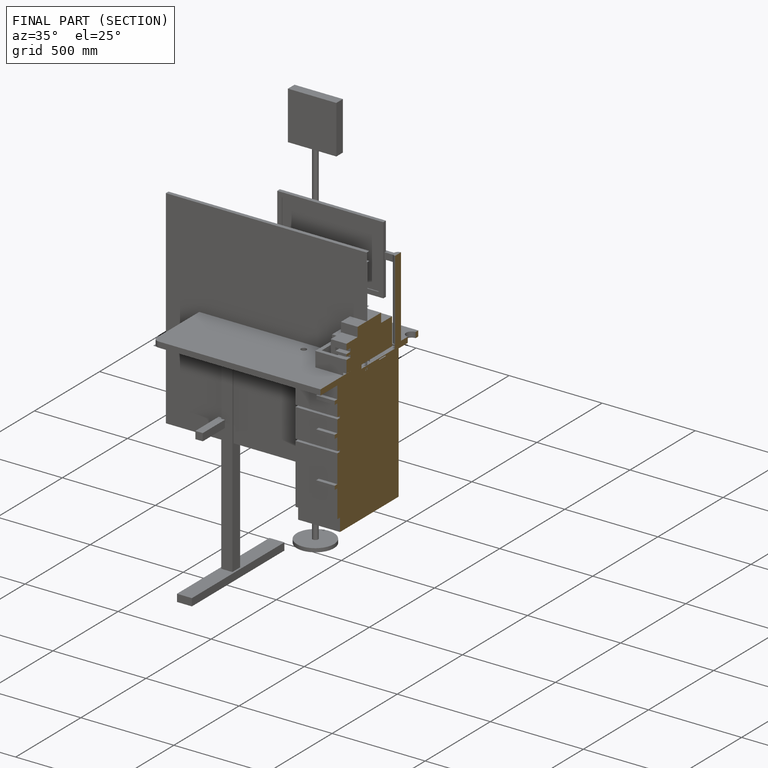
[diagram: finished part — half-section view (interior)]
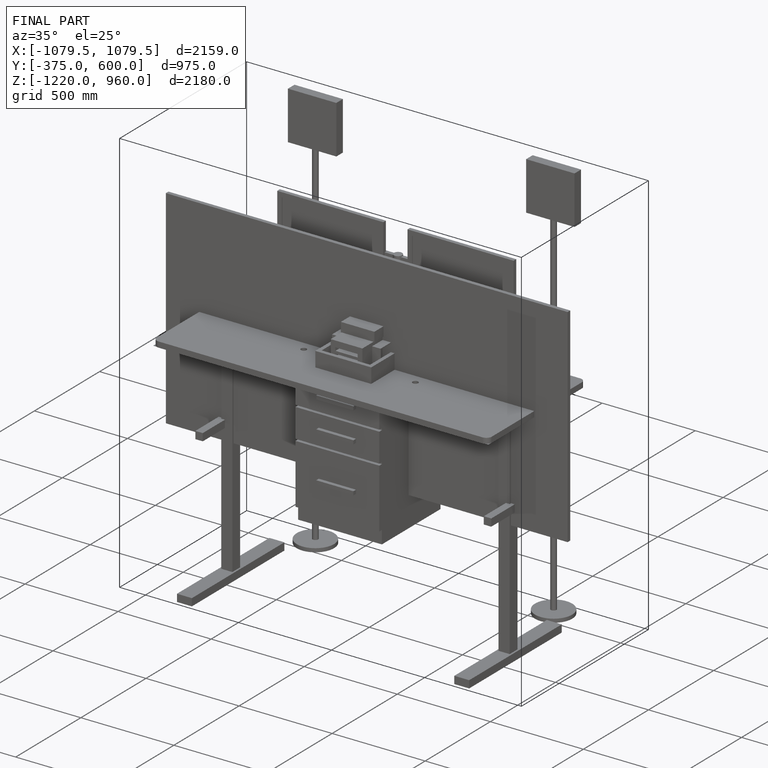
[diagram: finished part — iso view with bounding-box wireframe]
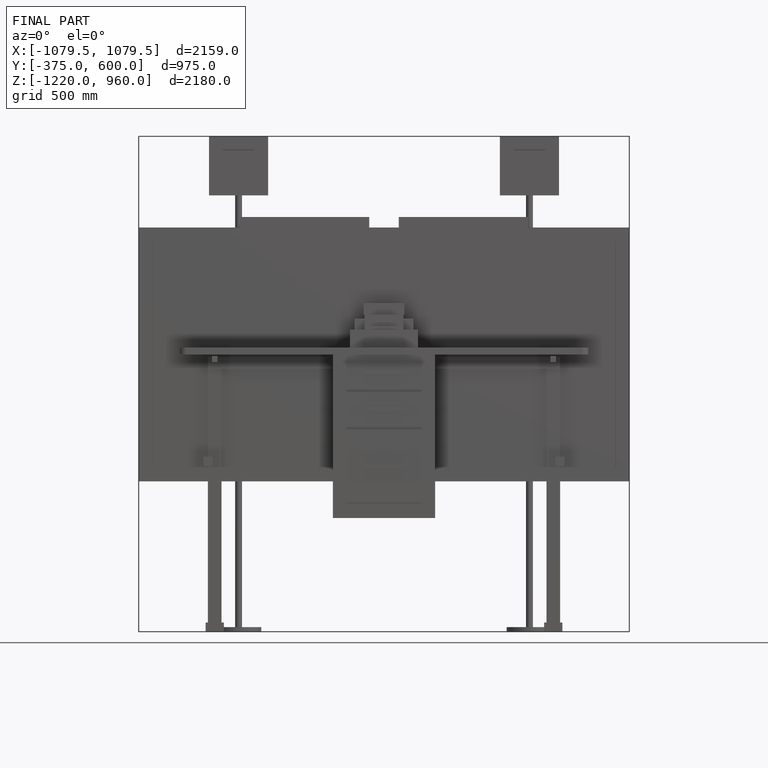
[diagram: finished part — front view with bounding-box wireframe]
